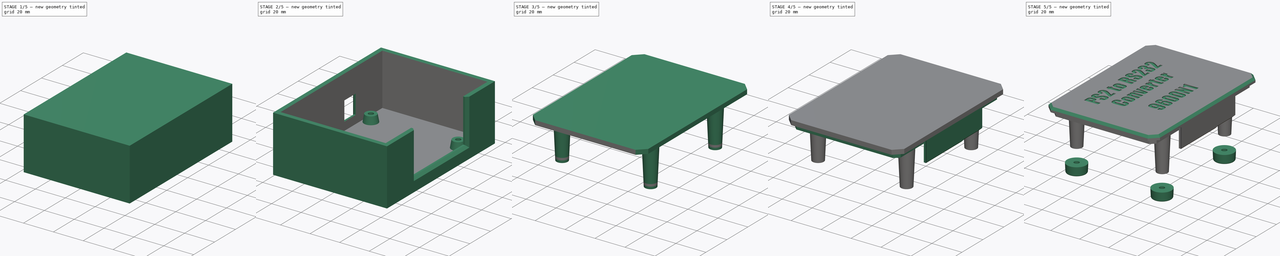
[diagram: build sequence overview — one tinted view per stage of 5, left to right]
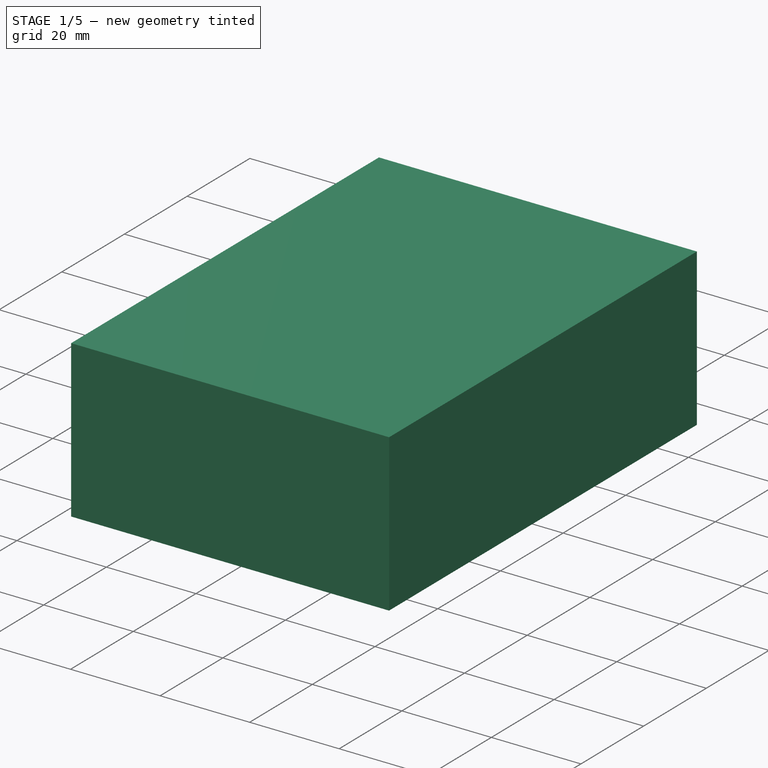
[diagram: stage 1 of 5 — iso view after this stage's code; geometry added in this stage tinted green]
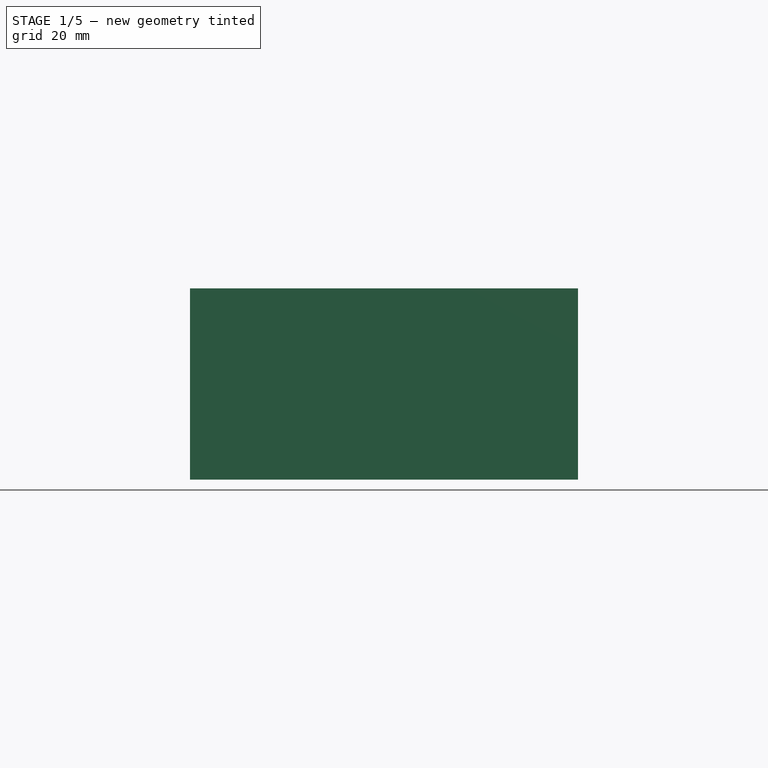
[diagram: stage 1 of 5 — front view after this stage's code; geometry added in this stage tinted green]
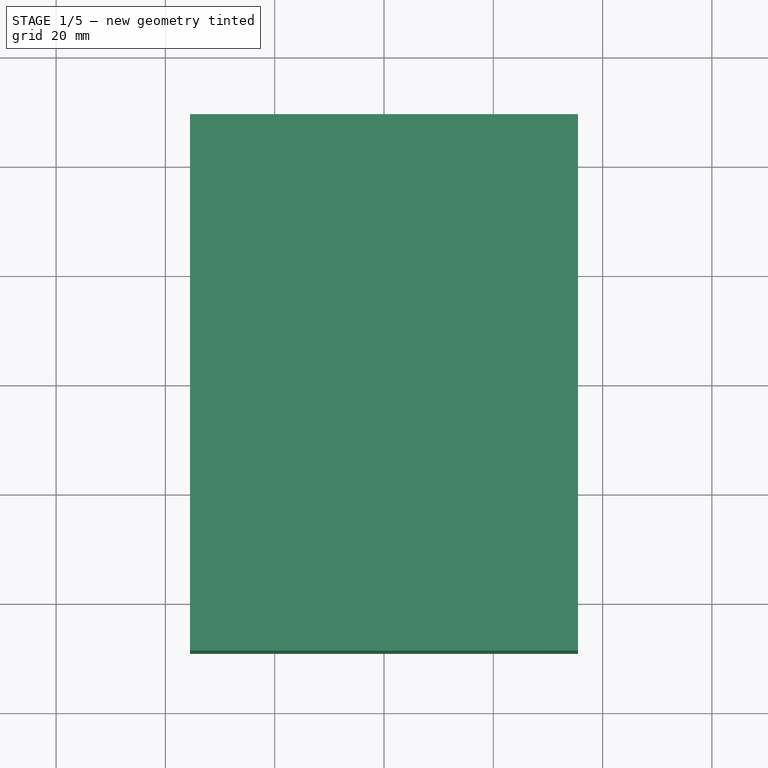
[diagram: stage 1 of 5 — top view after this stage's code; geometry added in this stage tinted green]
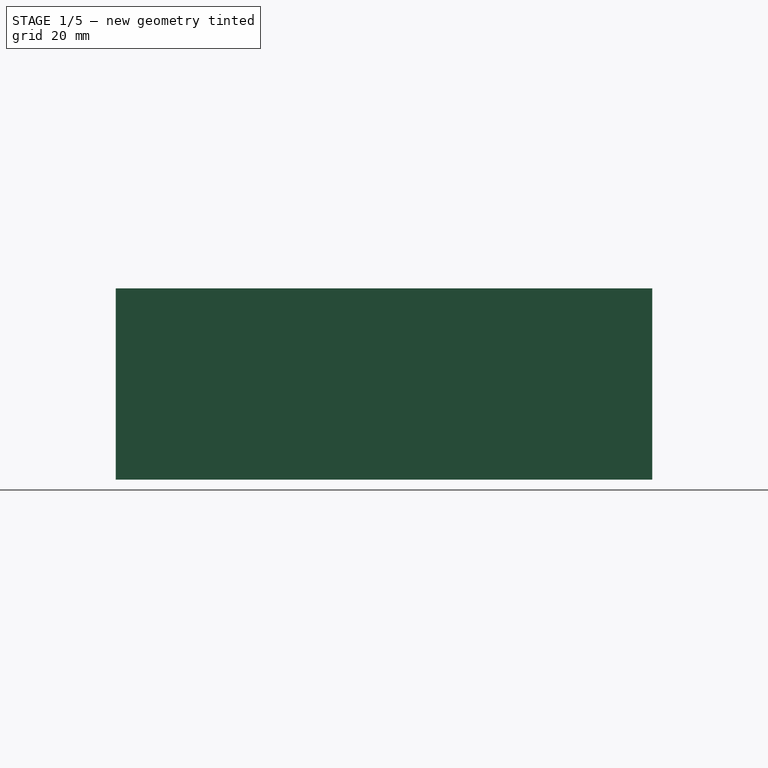
[diagram: stage 1 of 5 — right view after this stage's code; geometry added in this stage tinted green]
FCSTD DOCUMENT  (FreeCAD 0.20R29603 (Git))
Label: Adapter
License: All rights reserved
LicenseURL: http://en.wikipedia.org/wiki/All_rights_reserved
objects: Sketcher::SketchObject×21, PartDesign::Pad×11, PartDesign::Pocket×9, PartDesign::Chamfer×8, PartDesign::Body×4, PartDesign::ShapeBinder×4, Part::Part2DObjectPython×3, PartDesign::Draft×2, PartDesign::Thickness×1, PartDesign::Revolution×1, PartDesign::Fillet×1, Part::FeaturePython×1
note: 99 computed .brp shape members not serialized (recipe doc carries the construction recipe); baked Part::Feature solids carry a one-line shape summary decoded from their .brp

FEATURE [Sketcher::SketchObject] Sketch  label="PS2 interface PCB Blank spec"
  FullyConstrained = true
  MapMode = 5
  Support = -> [XY_Plane]
  sketch-geometry (8):
    g0: LineSegment StartX=-34.76 StartY=35.395 StartZ=0 EndX=34.76 EndY=35.395 EndZ=0
    g1: LineSegment StartX=34.76 StartY=35.395 StartZ=0 EndX=34.76 EndY=-35.395 EndZ=0
    g2: LineSegment StartX=34.76 StartY=-35.395 StartZ=0 EndX=-34.76 EndY=-35.395 EndZ=0
    g3: LineSegment StartX=-34.76 StartY=-35.395 StartZ=0 EndX=-34.76 EndY=35.395 EndZ=0
    g4: Circle CenterX=-30.315 CenterY=30.645 CenterZ=0 NormalX=0 NormalY=0 NormalZ=1 AngleXU=0 Radius=1.65
    g5: Circle CenterX=28.74 CenterY=30.645 CenterZ=0 NormalX=0 NormalY=0 NormalZ=1 AngleXU=0 Radius=1.65
    g6: Circle CenterX=-30.315 CenterY=-30.95 CenterZ=0 NormalX=0 NormalY=0 NormalZ=1 AngleXU=0 Radius=1.65
    g7: Circle CenterX=28.74 CenterY=-30.95 CenterZ=0 NormalX=0 NormalY=0 NormalZ=1 AngleXU=0 Radius=1.65
  constraints (23):
    c: Coincident(g0,g1)
    c: Coincident(g1,g2)
    c: Coincident(g2,g3)
    c: Coincident(g3,g0)
    c: Horizontal(g0)
    c: Horizontal(g2)
    c: Vertical(g1)
    c: Vertical(g3)
    c: Symmetric(g1,g0,g-1)
    c: Distance(g0) = 69.52
    c: Distance(g3) = 70.79
    c: Equal(g6,g7)
    c: Equal(g6,g5)
    c: Equal(g6,g4)
    c: Radius(g6) = 1.65
    c: DistanceX(g0,g4) = 4.445
    c: DistanceX(g2,g6) = 4.445
    c: DistanceX(g2,g7) = 63.5
    c: DistanceX(g0,g5) = 63.5
    c: DistanceY(g2,g4) = 66.04
    c: DistanceY(g1,g5) = 66.04
    c: DistanceY(g2,g6) = 4.445
    c: DistanceY(g1,g7) = 4.445
FEATURE [PartDesign::Pad] Pad  label="Make blank PCB"
  Direction = (0,0,1)
  Length = 1.6
  Length2 = 10
  Profile = -> Sketch
  ReferenceAxis = -> Sketch [N_Axis]
  Type = 0
FEATURE [Sketcher::SketchObject] Sketch001  label="D conn block model spec"
  ExternalGeometry = -> [Pad]
  FullyConstrained = true
  MapMode = 5
  Placement = pos=(0,0,1.6) rot=(0,0,1;0rad)
  Support = -> [Pad]
  sketch-geometry (5):
    g0: LineSegment StartX=20.46 StartY=7.26 StartZ=0 EndX=38.46 EndY=7.26 EndZ=0
    g1: LineSegment StartX=38.46 StartY=7.26 StartZ=0 EndX=38.46 EndY=-23.44 EndZ=0
    g2: LineSegment StartX=38.46 StartY=-23.44 StartZ=0 EndX=20.46 EndY=-23.44 EndZ=0
    g3: LineSegment StartX=20.46 StartY=-23.44 StartZ=0 EndX=20.46 EndY=7.26 EndZ=0
    g4: LineSegment StartX=20.46 StartY=-8.09 StartZ=0 EndX=38.46 EndY=-8.09 EndZ=0
  constraints (15):
    c: Coincident(g0,g1)
    c: Coincident(g1,g2)
    c: Coincident(g2,g3)
    c: Coincident(g3,g0)
    c: Horizontal(g0)
    c: Horizontal(g2)
    c: Vertical(g1)
    c: Vertical(g3)
    c: Distance(g1) = 30.7
    c: Distance(g0) = 18
    c: PointOnObject(g4,g3)
    c: PointOnObject(g4,g1)
    c: Symmetric(g2,g0,g4)
    c: DistanceY(g-3,g4) = 27.305
    c: DistanceX(g2,g-3) = 14.3
FEATURE [PartDesign::Pad] Pad001  label="D conn block model (no details)"
  BaseFeature = -> Pad
  Direction = (0,0,1)
  Length = 12.75
  Length2 = 10
  Profile = -> Sketch001
  ReferenceAxis = -> Sketch001 [N_Axis]
  Type = 0
FEATURE [Sketcher::SketchObject] Sketch002  label="PS2 Socket block model spec"
  ExternalGeometry = -> [Pad001]
  FullyConstrained = true
  MapMode = 5
  Placement = pos=(0,0,1.6) rot=(0,0,1;0rad)
  Support = -> [Pad001]
  sketch-geometry (5):
    g0: LineSegment StartX=22.26 StartY=24.6775 StartZ=0 EndX=35.36 EndY=24.6775 EndZ=0
    g1: LineSegment StartX=35.36 StartY=24.6775 StartZ=0 EndX=35.36 EndY=10.5775 EndZ=0
    g2: LineSegment StartX=35.36 StartY=10.5775 StartZ=0 EndX=22.26 EndY=10.5775 EndZ=0
    g3: LineSegment StartX=22.26 StartY=10.5775 StartZ=0 EndX=22.26 EndY=24.6775 EndZ=0
    g4: LineSegment StartX=35.36 StartY=17.6275 StartZ=0 EndX=22.26 EndY=17.6275 EndZ=0
  constraints (15):
    c: Coincident(g0,g1)
    c: Coincident(g1,g2)
    c: Coincident(g2,g3)
    c: Coincident(g3,g0)
    c: Horizontal(g0)
    c: Horizontal(g2)
    c: Vertical(g1)
    c: Vertical(g3)
    c: PointOnObject(g4,g3)
    c: PointOnObject(g4,g1)
    c: Symmetric(g2,g0,g4)
    c: DistanceY(g-3,g4) = 53.0225
    c: DistanceX(g4,g-3) = 12.5
    c: Distance(g1) = 14.1
    c: Distance(g0) = 13.1
FEATURE [PartDesign::Pad] Pad002  label="Make PS2 Socket block (no details)"
  BaseFeature = -> Pad001
  Direction = (0,0,1)
  Length = 13.2
  Length2 = 10
  Profile = -> Sketch002
  ReferenceAxis = -> Sketch002 [N_Axis]
  Type = 0
FEATURE [Sketcher::SketchObject] Sketch003  label="Power jack socket block spec"
  ExternalGeometry = -> [Pad002]
  FullyConstrained = true
  MapMode = 5
  Placement = pos=(0,0,1.6) rot=(0,0,1;0rad)
  Support = -> [Pad002]
  sketch-geometry (5):
    g0: LineSegment StartX=-36.64 StartY=22.445 StartZ=0 EndX=-22.64 EndY=22.445 EndZ=0
    g1: LineSegment StartX=-22.64 StartY=22.445 StartZ=0 EndX=-22.64 EndY=13.445 EndZ=0
    g2: LineSegment StartX=-22.64 StartY=13.445 StartZ=0 EndX=-36.64 EndY=13.445 EndZ=0
    g3: LineSegment StartX=-36.64 StartY=13.445 StartZ=0 EndX=-36.64 EndY=22.445 EndZ=0
    g4: LineSegment StartX=-22.64 StartY=17.945 StartZ=0 EndX=-36.64 EndY=17.945 EndZ=0
  constraints (15):
    c: Coincident(g0,g1)
    c: Coincident(g1,g2)
    c: Coincident(g2,g3)
    c: Coincident(g3,g0)
    c: Horizontal(g0)
    c: Horizontal(g2)
    c: Vertical(g1)
    c: Vertical(g3)
    c: Distance(g0) = 14
    c: Distance(g3) = 9
    c: PointOnObject(g4,g3)
    c: PointOnObject(g4,g1)
    c: Symmetric(g2,g0,g4)
    c: DistanceY(g-3,g4) = 53.34
    c: DistanceX(g2,g-3) = 1.88
FEATURE [PartDesign::Pad] Pad003  label="Make power jack socket block (no details)"
  BaseFeature = -> Pad002
  Direction = (0,0,1)
  Length = 11
  Length2 = 10
  Profile = -> Sketch003
  ReferenceAxis = -> Sketch003 [N_Axis]
  Type = 0
FEATURE [Sketcher::SketchObject] Sketch004  label="Heatsink block spec (no details)"
  ExternalGeometry = -> [Pad003]
  FullyConstrained = true
  MapMode = 5
  Placement = pos=(0,0,1.6) rot=(0,0,1;0rad)
  Support = -> [Pad003]
  sketch-geometry (6):
    g0: LineSegment StartX=-16.125 StartY=47.095 StartZ=0 EndX=11.375 EndY=47.095 EndZ=0
    g1: LineSegment StartX=11.375 StartY=47.095 StartZ=0 EndX=11.375 EndY=9.095 EndZ=0
    g2: LineSegment StartX=11.375 StartY=9.095 StartZ=0 EndX=-16.125 EndY=9.095 EndZ=0
    g3: LineSegment StartX=-16.125 StartY=9.095 StartZ=0 EndX=-16.125 EndY=47.095 EndZ=0
    g4: LineSegment StartX=-2.375 StartY=47.095 StartZ=0 EndX=-2.375 EndY=9.095 EndZ=0
    g5: GeomPoint X=-2.375 Y=11.635 Z=0
  constraints (18):
    c: Coincident(g0,g1)
    c: Coincident(g1,g2)
    c: Coincident(g2,g3)
    c: Coincident(g3,g0)
    c: Horizontal(g0)
    c: Horizontal(g2)
    c: Vertical(g1)
    c: Vertical(g3)
    c: PointOnObject(g4,g0)
    c: PointOnObject(g4,g2)
    c: Symmetric(g0,g0,g4)
    c: PointOnObject(g5,g4)
    c: Distance(g0) = 27.5
    c: Distance(g3) = 38
    c: DistanceY(g2,g5) = 2.54
    c: DistanceX(g-3,g5) = 32.385
    c: DistanceY(g-3,g5) = 47.03
    c: DistanceY(g-4,g0) = 11.7
FEATURE [PartDesign::Pad] Pad004  label="Add heatsink block"
  BaseFeature = -> Pad003
  Direction = (0,0,1)
  Length = 22.55
  Length2 = 10
  Profile = -> Sketch004
  ReferenceAxis = -> Sketch004 [N_Axis]
  Type = 0
FEATURE [Sketcher::SketchObject] Sketch005  label="Heatsink chip void cutout spec"
  ExternalGeometry = -> [Pad004]
  FullyConstrained = false
  MapMode = 5
  Placement = pos=(0,47.095,0) rot=(0,0.707107,0.707107;3.14159rad)
  Support = -> [Pad004]
  sketch-geometry (5):
    g0: LineSegment StartX=-9.375 StartY=26.8221 StartZ=0 EndX=14.125 EndY=26.8221 EndZ=0
    g1: LineSegment StartX=14.125 StartY=26.8221 StartZ=0 EndX=14.125 EndY=3.6 EndZ=0
    g2: LineSegment StartX=14.125 StartY=3.6 StartZ=0 EndX=-9.375 EndY=3.6 EndZ=0
    g3: LineSegment StartX=-9.375 StartY=3.6 StartZ=0 EndX=-9.375 EndY=26.8221 EndZ=0
    g4: LineSegment StartX=2.375 StartY=26.8221 StartZ=0 EndX=2.375 EndY=24.15 EndZ=0
  constraints (13):
    c: Coincident(g0,g1)
    c: Coincident(g1,g2)
    c: Coincident(g2,g3)
    c: Coincident(g3,g0)
    c: Horizontal(g2)
    c: Vertical(g1)
    c: Vertical(g3)
    c: PointOnObject(g4,g0)
    c: PointOnObject(g4,g-4)
    c: Symmetric(g0,g0,g4)
    c: Symmetric(g-4,g-4,g4)
    c: DistanceX(g-4,g0) = 2
    c: DistanceY(g-3,g1) = 2
FEATURE [PartDesign::Pocket] Pocket  label="Add heatsink chip void cut"
  BaseFeature = -> Pad004
  Direction = (0,-1,2e-16)
  Length = 5
  Length2 = 5
  Profile = -> Sketch005
  ReferenceAxis = -> Sketch005 [N_Axis]
  Type = 2
FEATURE [PartDesign::Body] Body  label="PCB "
  Group = -> [Sketch,Pad,Sketch001,Pad001,Sketch002,Pad002,Sketch003,Pad003,Sketch004,Pad004,Sketch005,Pocket]
  Origin = -> Origin
  Tip = -> Pocket
FEATURE [PartDesign::ShapeBinder] ShapeBinder
  Support = -> [Body]
  TraceSupport = false
FEATURE [Sketcher::SketchObject] Sketch006  label="Box shell outline"
  ExternalGeometry = -> [ShapeBinder]
  FullyConstrained = true
  MapMode = 5
  Support = -> [XY_Plane001]
  sketch-geometry (4):
    g0: LineSegment StartX=-35.51 StartY=49.095 StartZ=0 EndX=35.51 EndY=49.095 EndZ=0
    g1: LineSegment StartX=35.51 StartY=49.095 StartZ=0 EndX=35.51 EndY=-49.095 EndZ=0
    g2: LineSegment StartX=35.51 StartY=-49.095 StartZ=0 EndX=-35.51 EndY=-49.095 EndZ=0
    g3: LineSegment StartX=-35.51 StartY=-49.095 StartZ=0 EndX=-35.51 EndY=49.095 EndZ=0
  constraints (11):
    c: Coincident(g0,g1)
    c: Coincident(g1,g2)
    c: Coincident(g2,g3)
    c: Coincident(g3,g0)
    c: Horizontal(g0)
    c: Horizontal(g2)
    c: Vertical(g1)
    c: DistanceY(g-3,g0) = 2
    c: DistanceX(g0,g-4) = 0.75
    c: DistanceX(g-5,g0) = 0.75
    c: Symmetric(g0,g2,g-1)
FEATURE [PartDesign::Pad] Pad005  label="Make box shell block"
  Direction = (0,0,1)
  Length = 35
  Length2 = 10
  Profile = -> Sketch006
  ReferenceAxis = -> Sketch006 [N_Axis]
  Type = 0
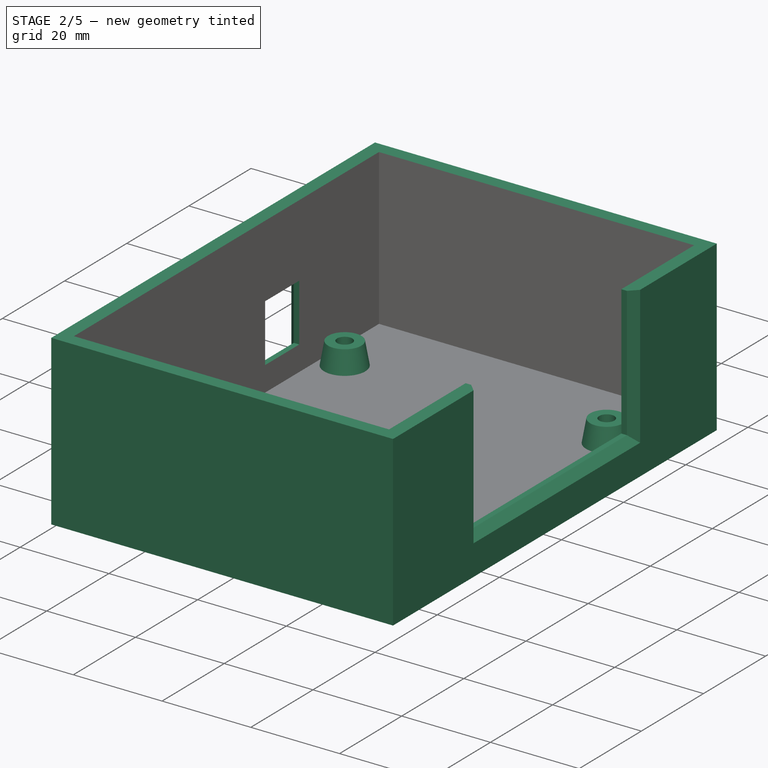
[diagram: stage 2 of 5 — iso view after this stage's code; geometry added in this stage tinted green]
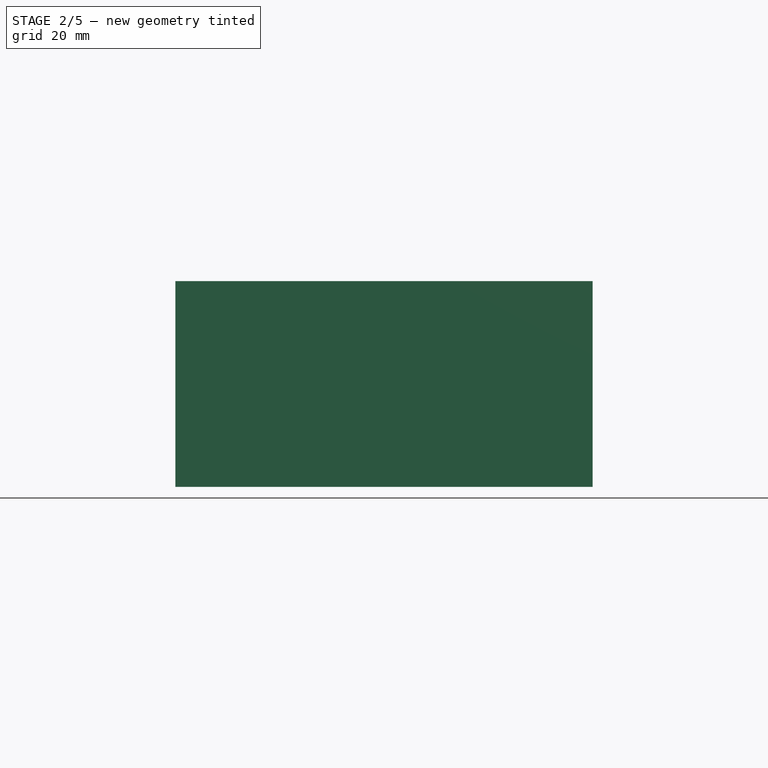
[diagram: stage 2 of 5 — front view after this stage's code; geometry added in this stage tinted green]
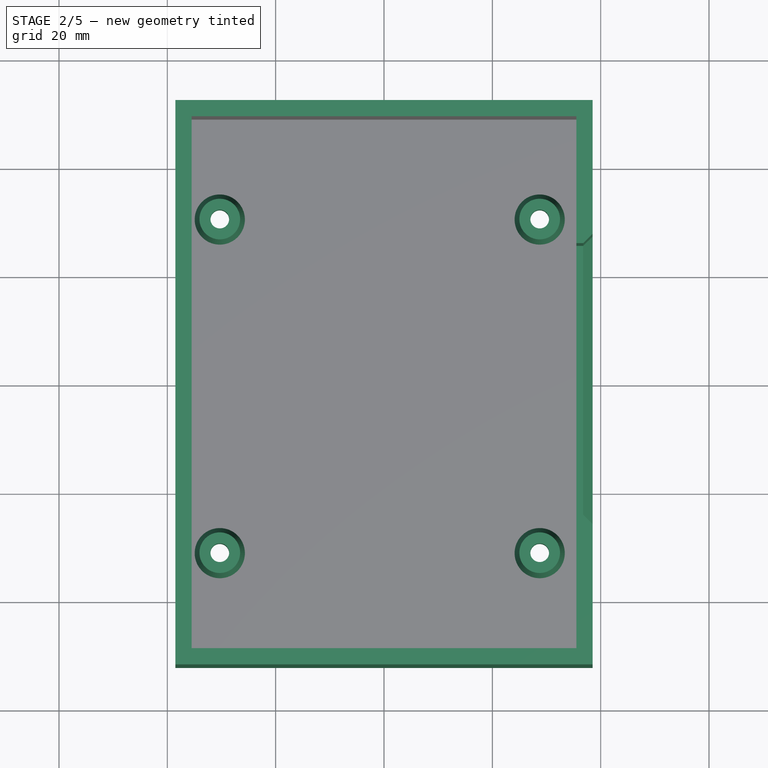
[diagram: stage 2 of 5 — top view after this stage's code; geometry added in this stage tinted green]
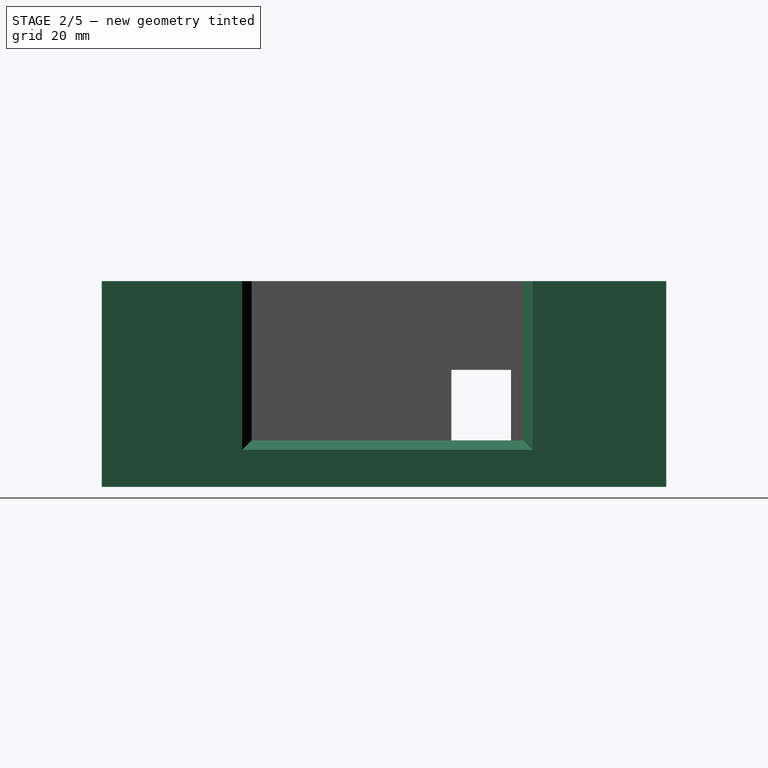
[diagram: stage 2 of 5 — right view after this stage's code; geometry added in this stage tinted green]
FEATURE [PartDesign::Thickness] Thickness  label="Make block into a shell"
  Base = -> Pad005 [Face6]
  BaseFeature = -> Pad005
  Intersection = false
  Join = 1
  Mode = 0
  SupportTransform = false
  Value = 3
FEATURE [Sketcher::SketchObject] Sketch007  label="Mounting and closing pillar spec"
  ExternalGeometry = -> [ShapeBinder]
  FullyConstrained = true
  MapMode = 5
  Support = -> [Thickness]
  sketch-geometry (4):
    g0: Circle CenterX=-30.315 CenterY=30.645 CenterZ=0 NormalX=0 NormalY=0 NormalZ=1 AngleXU=0 Radius=3.75
    g1: Circle CenterX=28.74 CenterY=30.645 CenterZ=0 NormalX=0 NormalY=0 NormalZ=1 AngleXU=0 Radius=3.75
    g2: Circle CenterX=-30.315 CenterY=-30.95 CenterZ=0 NormalX=0 NormalY=0 NormalZ=1 AngleXU=0 Radius=3.75
    g3: Circle CenterX=28.74 CenterY=-30.95 CenterZ=0 NormalX=0 NormalY=0 NormalZ=1 AngleXU=0 Radius=3.75
  constraints (8):
    c: Coincident(g2,g-5)
    c: Coincident(g3,g-6)
    c: Coincident(g0,g-3)
    c: Coincident(g1,g-4)
    c: Equal(g0,g1)
    c: Equal(g0,g3)
    c: Equal(g0,g2)
    c: Diameter(g0) = 7.5
FEATURE [PartDesign::Pad] Pad006  label="Add mounting and closing pillars"
  BaseFeature = -> Thickness
  Direction = (0,0,1)
  Length = 5
  Length2 = 10
  Profile = -> Sketch007
  ReferenceAxis = -> Sketch007 [N_Axis]
  Type = 0
FEATURE [Sketcher::SketchObject] Sketch008  label="Front sockets cutout spec"
  ExternalGeometry = -> [ShapeBinder,Pad006]
  FullyConstrained = true
  MapMode = 5
  Placement = pos=(38.51,0,0) rot=(0.57735,0.57735,0.57735;2.0944rad)
  Support = -> [Pad006]
  sketch-geometry (4):
    g0: LineSegment StartX=-24.44 StartY=35 StartZ=0 EndX=25.6775 EndY=35 EndZ=0
    g1: LineSegment StartX=25.6775 StartY=35 StartZ=0 EndX=25.6775 EndY=5.6 EndZ=0
    g2: LineSegment StartX=25.6775 StartY=5.6 StartZ=0 EndX=-24.44 EndY=5.6 EndZ=0
    g3: LineSegment StartX=-24.44 StartY=5.6 StartZ=0 EndX=-24.44 EndY=35 EndZ=0
  constraints (12):
    c: Coincident(g0,g1)
    c: Coincident(g1,g2)
    c: Coincident(g2,g3)
    c: Coincident(g3,g0)
    c: Horizontal(g0)
    c: Horizontal(g2)
    c: Vertical(g1)
    c: Vertical(g3)
    c: DistanceX(g0,g-5) = 1
    c: DistanceY(g-4,g1) = 4
    c: PointOnObject(g0,g-6)
    c: DistanceX(g-7,g1) = 1
FEATURE [PartDesign::Pocket] Pocket001  label="Add front sockets cutout"
  BaseFeature = -> Pad006
  Direction = (-1,0,0)
  Length = 5
  Length2 = 5
  Profile = -> Sketch008
  ReferenceAxis = -> Sketch008 [N_Axis]
  Type = 2
FEATURE [Sketcher::SketchObject] Sketch009  label="Power jack cutout spec"
  ExternalGeometry = -> [ShapeBinder]
  FullyConstrained = true
  MapMode = 5
  Placement = pos=(-38.51,0,0) rot=(0.57735,-0.57735,-0.57735;2.0944rad)
  Support = -> [Pocket001]
  sketch-geometry (4):
    g0: LineSegment StartX=-23.445 StartY=18.6 StartZ=0 EndX=-12.445 EndY=18.6 EndZ=0
    g1: LineSegment StartX=-12.445 StartY=18.6 StartZ=0 EndX=-12.445 EndY=5.6 EndZ=0
    g2: LineSegment StartX=-12.445 StartY=5.6 StartZ=0 EndX=-23.445 EndY=5.6 EndZ=0
    g3: LineSegment StartX=-23.445 StartY=5.6 StartZ=0 EndX=-23.445 EndY=18.6 EndZ=0
  constraints (12):
    c: Coincident(g0,g1)
    c: Coincident(g1,g2)
    c: Coincident(g2,g3)
    c: Coincident(g3,g0)
    c: Horizontal(g0)
    c: Horizontal(g2)
    c: Vertical(g1)
    c: Vertical(g3)
    c: DistanceY(g-4,g0) = 6
    c: DistanceX(g0,g-4) = 1
    c: DistanceX(g-3,g0) = 1
    c: DistanceY(g-7,g1) = 4
FEATURE [PartDesign::Pocket] Pocket002  label="Add power jack cutout"
  BaseFeature = -> Pocket001
  Direction = (1,0,0)
  Length = 5
  Length2 = 5
  Profile = -> Sketch009
  ReferenceAxis = -> Sketch009 [N_Axis]
  Type = 2
FEATURE [Sketcher::SketchObject] Sketch010  label="Pillar screwhole spec"
  ExternalGeometry = -> [Pocket002]
  FullyConstrained = true
  MapMode = 5
  Placement = pos=(0,0,-3) rot=(1,0,0;3.14159rad)
  Support = -> [Pocket002]
  sketch-geometry (4):
    g0: Circle CenterX=-30.315 CenterY=30.95 CenterZ=0 NormalX=0 NormalY=0 NormalZ=1 AngleXU=0 Radius=1.725
    g1: Circle CenterX=28.74 CenterY=30.95 CenterZ=0 NormalX=0 NormalY=0 NormalZ=1 AngleXU=0 Radius=1.725
    g2: Circle CenterX=-30.315 CenterY=-30.645 CenterZ=0 NormalX=0 NormalY=0 NormalZ=1 AngleXU=0 Radius=1.725
    g3: Circle CenterX=28.74 CenterY=-30.645 CenterZ=0 NormalX=0 NormalY=0 NormalZ=1 AngleXU=0 Radius=1.725
  constraints (8):
    c: Coincident(g0,g-6)
    c: Coincident(g1,g-5)
    c: Coincident(g2,g-3)
    c: Coincident(g3,g-4)
    c: Equal(g0,g1)
    c: Equal(g0,g2)
    c: Equal(g0,g3)
    c: Diameter(g0) = 3.45
FEATURE [PartDesign::Pocket] Pocket003  label="Add screwholes in pillars"
  BaseFeature = -> Pocket002
  Direction = (0,0,1)
  Length = 5
  Length2 = 5
  Profile = -> Sketch010
  ReferenceAxis = -> Sketch010 [N_Axis]
  Type = 1
FEATURE [PartDesign::Draft] Draft  label="Beef up mounting pillar base by drafting at 10d"
  Angle = 10
  Base = -> Pocket003 [Face14,Face16,Face17,Face15]
  BaseFeature = -> Pocket003
  NeutralPlane = -> Pocket003 [Face22]
  SupportTransform = false
FEATURE [PartDesign::Chamfer] Chamfer  label="Make entry holes pretty"
  Angle = 45
  Base = -> Draft [Edge42,Edge44,Edge40,Edge33,Edge39,Edge37,Edge36]
  BaseFeature = -> Draft
  ChamferType = 0
  FlipDirection = false
  Size = 1.75
  Size2 = 1
  SupportTransform = false
  UseAllEdges = false
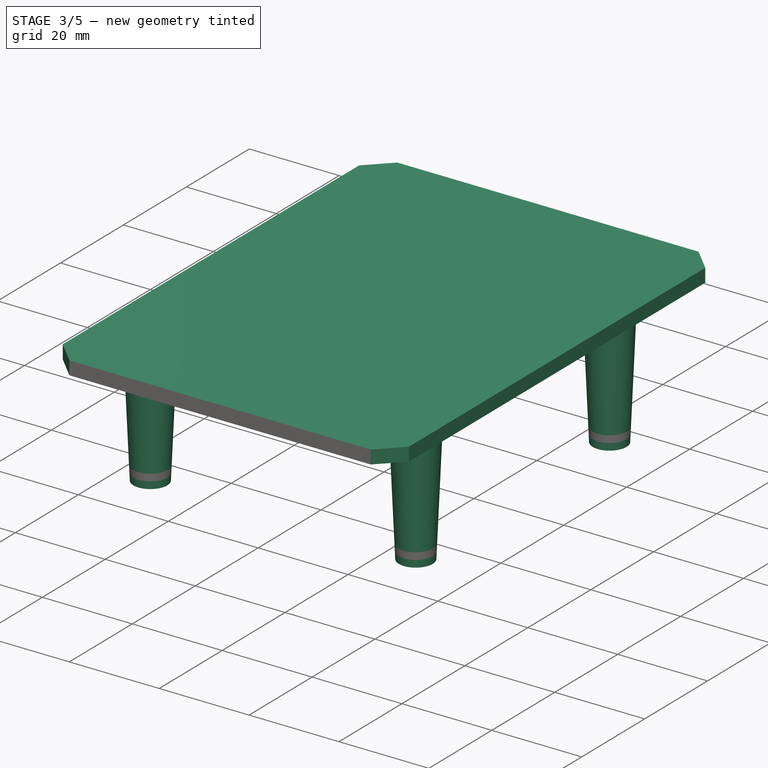
[diagram: stage 3 of 5 — iso view after this stage's code; geometry added in this stage tinted green]
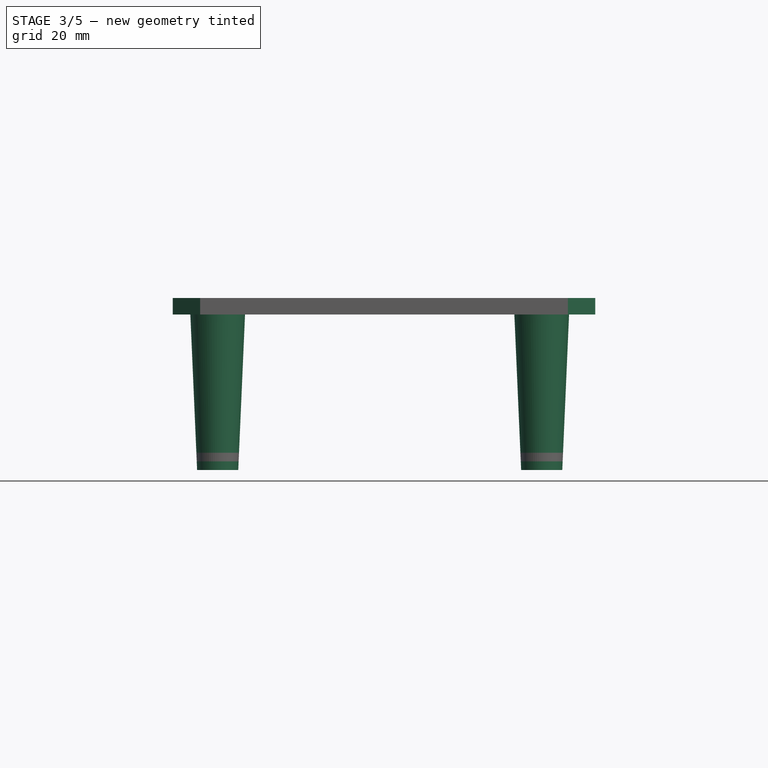
[diagram: stage 3 of 5 — front view after this stage's code; geometry added in this stage tinted green]
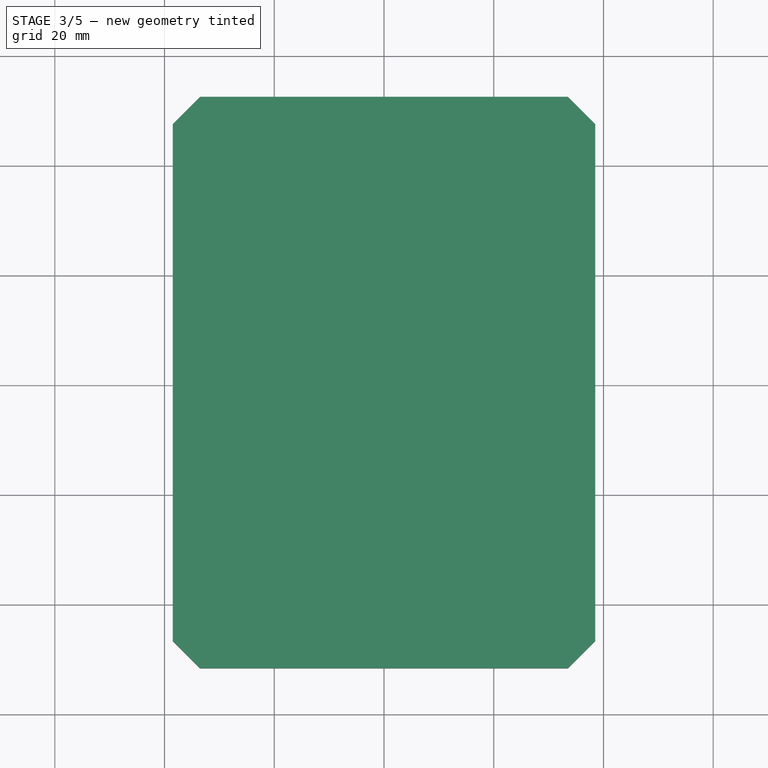
[diagram: stage 3 of 5 — top view after this stage's code; geometry added in this stage tinted green]
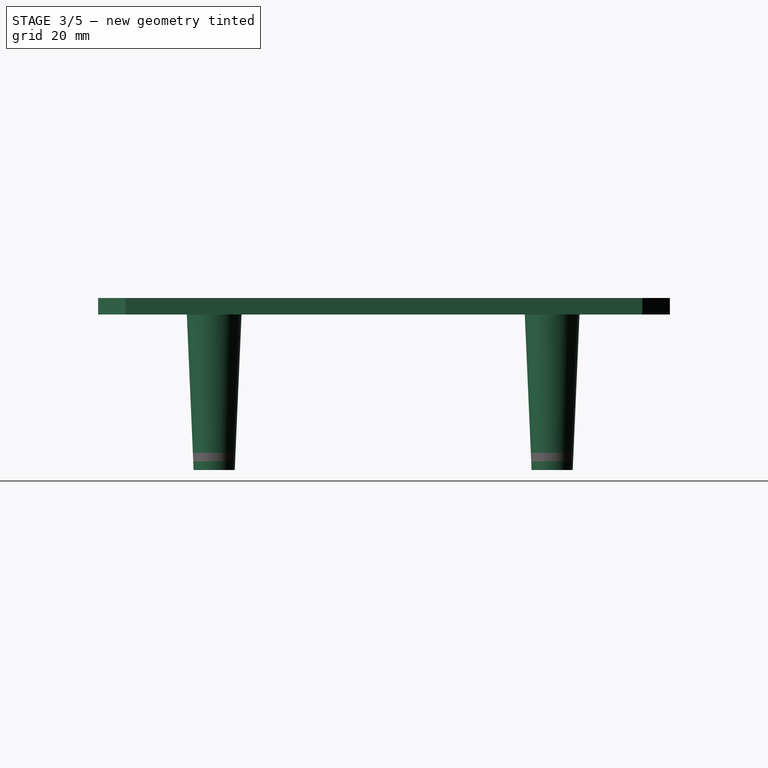
[diagram: stage 3 of 5 — right view after this stage's code; geometry added in this stage tinted green]
FEATURE [PartDesign::Chamfer] Chamfer001  label="Inside corner reinforcement chamfer"
  Angle = 45
  Base = -> Chamfer [Edge30,Edge35,Edge22,Edge21]
  BaseFeature = -> Chamfer
  ChamferType = 0
  FlipDirection = false
  Size = 3
  Size2 = 1
  SupportTransform = false
  UseAllEdges = false
FEATURE [PartDesign::Chamfer] Chamfer002  label="Outside decorative chamfer to match with inside chamfer"
  Angle = 45
  Base = -> Chamfer001 [Edge46,Edge55,Edge35,Edge39]
  BaseFeature = -> Chamfer001
  ChamferType = 0
  FlipDirection = false
  Size = 5
  Size2 = 1
  SupportTransform = false
  UseAllEdges = false
FEATURE [PartDesign::Chamfer] Chamfer003  label="Vanity and lid easing chamfer"
  Angle = 45
  Base = -> Chamfer002 [Face1]
  BaseFeature = -> Chamfer002
  ChamferType = 0
  FlipDirection = false
  Size = 0.5
  Size2 = 1
  SupportTransform = false
  UseAllEdges = false
FEATURE [PartDesign::Body] Body001  label="Case base"
  Group = -> [ShapeBinder,Sketch006,Pad005,Thickness,Sketch007,Pad006,Sketch008,Pocket001,Sketch009,Pocket002,Sketch010,Pocket003,Draft,Chamfer,Chamfer001,Chamfer002,Chamfer003]
  Origin = -> Origin001
  Placement = pos=(0,0,-5) rot=(0,0,1;0rad)
  Tip = -> Chamfer003
FEATURE [PartDesign::ShapeBinder] ShapeBinder001  label="Base shapebinder"
  Placement = pos=(0,0,-5) rot=(0,0,1;0rad)
  Support = -> [Body001]
  TraceSupport = false
FEATURE [Sketcher::SketchObject] Sketch011  label="Lid spec"
  ExternalGeometry = -> [ShapeBinder001]
  FullyConstrained = true
  MapMode = 5
  Placement = pos=(0,0,30) rot=(0,0,1;0rad)
  Support = -> [ShapeBinder001]
  sketch-geometry (8):
    g0: LineSegment StartX=33.51 StartY=52.095 StartZ=0 EndX=-33.51 EndY=52.095 EndZ=0
    g1: LineSegment StartX=-33.51 StartY=52.095 StartZ=0 EndX=-38.51 EndY=47.095 EndZ=0
    g2: LineSegment StartX=-38.51 StartY=47.095 StartZ=0 EndX=-38.51 EndY=-47.095 EndZ=0
    g3: LineSegment StartX=-38.51 StartY=-47.095 StartZ=0 EndX=-33.51 EndY=-52.095 EndZ=0
    g4: LineSegment StartX=-33.51 StartY=-52.095 StartZ=0 EndX=33.51 EndY=-52.095 EndZ=0
    g5: LineSegment StartX=33.51 StartY=-52.095 StartZ=0 EndX=38.51 EndY=-47.095 EndZ=0
    g6: LineSegment StartX=38.51 StartY=-47.095 StartZ=0 EndX=38.51 EndY=47.095 EndZ=0
    g7: LineSegment StartX=38.51 StartY=47.095 StartZ=0 EndX=33.51 EndY=52.095 EndZ=0
  constraints (16):
    c: Coincident(g0,g1)
    c: Coincident(g1,g2)
    c: Coincident(g2,g3)
    c: Coincident(g3,g4)
    c: Coincident(g4,g5)
    c: Coincident(g5,g6)
    c: Coincident(g6,g7)
    c: Coincident(g0,g7)
    c: Coincident(g-10,g5)
    c: Coincident(g-9,g4)
    c: Coincident(g3,g-8)
    c: Coincident(g-7,g2)
    c: Coincident(g-4,g1)
    c: Coincident(g-3,g0)
    c: Coincident(g-5,g6)
    c: Coincident(g-6,g0)
FEATURE [PartDesign::Pad] Pad007  label="Make lid from base spec"
  Direction = (0,0,1)
  Length = 3
  Length2 = 10
  Placement = pos=(0,0,-5) rot=(0,0,1;0rad)
  Profile = -> Sketch011
  ReferenceAxis = -> Sketch011 [N_Axis]
  Type = 0
FEATURE [Sketcher::SketchObject] Sketch012  label="Lid mounting pillar spec"
  ExternalGeometry = -> [ShapeBinder001]
  FullyConstrained = true
  MapMode = 5
  Placement = pos=(0,0,30) rot=(1,0,0;3.14159rad)
  Support = -> [Pad007]
  sketch-geometry (4):
    g0: Circle CenterX=-30.315 CenterY=-30.645 CenterZ=0 NormalX=0 NormalY=0 NormalZ=1 AngleXU=0 Radius=3.75
    g1: Circle CenterX=28.74 CenterY=-30.645 CenterZ=0 NormalX=0 NormalY=0 NormalZ=1 AngleXU=0 Radius=3.75
    g2: Circle CenterX=-30.315 CenterY=30.95 CenterZ=0 NormalX=0 NormalY=0 NormalZ=1 AngleXU=0 Radius=3.75
    g3: Circle CenterX=28.74 CenterY=30.95 CenterZ=0 NormalX=0 NormalY=0 NormalZ=1 AngleXU=0 Radius=3.75
  constraints (8):
    c: Coincident(g2,g-4)
    c: Coincident(g3,g-3)
    c: Coincident(g1,g-6)
    c: Coincident(g0,g-5)
    c: Equal(g0,g1)
    c: Equal(g0,g3)
    c: Equal(g0,g2)
    c: Diameter(g0) = 7.5
FEATURE [PartDesign::Pad] Pad008  label="Make lid mounting pillars"
  BaseFeature = -> Pad007
  Direction = (0,0,-1)
  Length = 28.35
  Length2 = 10
  Placement = pos=(0,0,-5) rot=(0,0,1;0rad)
  Profile = -> Sketch012
  ReferenceAxis = -> Sketch012 [N_Axis]
  Type = 0
FEATURE [PartDesign::Draft] Draft001  label="Beef up lid mounting pillars"
  Angle = 2.5
  Base = -> Pad008 [Face13,Face11,Face12,Face14]
  BaseFeature = -> Pad008
  NeutralPlane = -> Pad008 [Face18]
  Placement = pos=(0,0,-5) rot=(0,0,1;0rad)
  Reversed = true
  SupportTransform = false
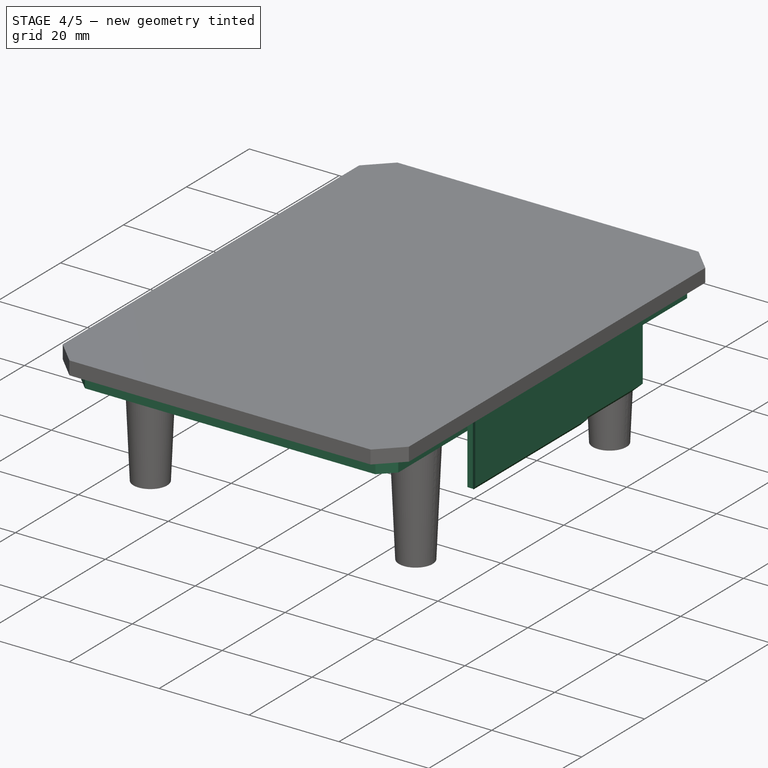
[diagram: stage 4 of 5 — iso view after this stage's code; geometry added in this stage tinted green]
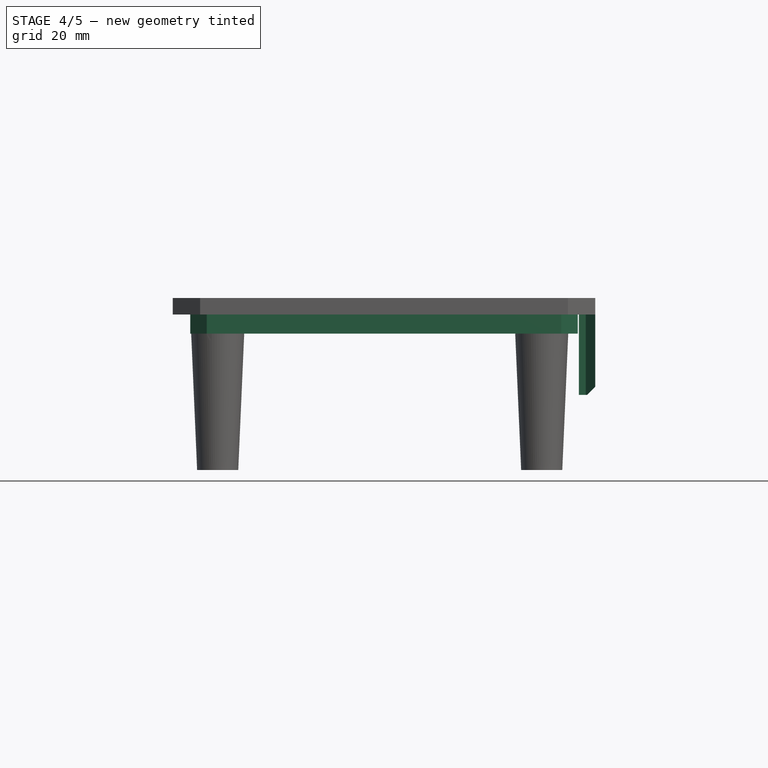
[diagram: stage 4 of 5 — front view after this stage's code; geometry added in this stage tinted green]
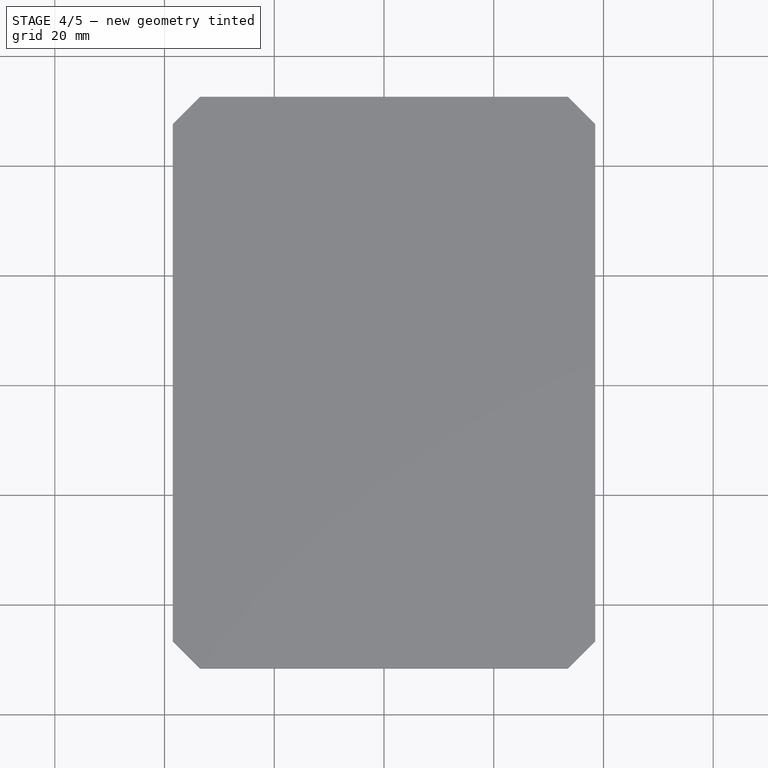
[diagram: stage 4 of 5 — top view after this stage's code; geometry added in this stage tinted green]
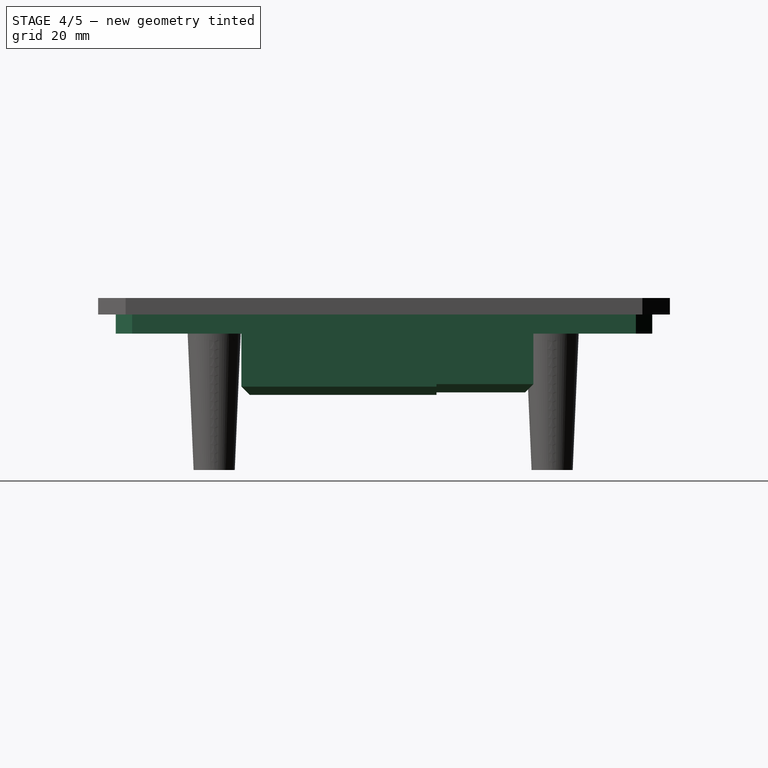
[diagram: stage 4 of 5 — right view after this stage's code; geometry added in this stage tinted green]
FEATURE [Sketcher::SketchObject] Sketch013  label="Inside lip spec for lid"
  ExternalGeometry = -> [ShapeBinder001]
  FullyConstrained = true
  MapMode = 5
  Placement = pos=(0,0,30) rot=(1,0,0;3.14159rad)
  Support = -> [Draft001]
  sketch-geometry (12):
    g0: LineSegment StartX=32.31 StartY=48.895 StartZ=0 EndX=-32.31 EndY=48.895 EndZ=0
    g1: LineSegment StartX=-32.31 StartY=48.895 StartZ=0 EndX=-35.31 EndY=45.895 EndZ=0
    g2: LineSegment StartX=-35.31 StartY=45.895 StartZ=0 EndX=-35.31 EndY=-45.895 EndZ=0
    g3: LineSegment StartX=-35.31 StartY=-45.895 StartZ=0 EndX=-32.31 EndY=-48.895 EndZ=0
    g4: LineSegment StartX=-32.31 StartY=-48.895 StartZ=0 EndX=32.31 EndY=-48.895 EndZ=0
    g5: LineSegment StartX=32.31 StartY=-48.895 StartZ=0 EndX=35.31 EndY=-45.895 EndZ=0
    g6: LineSegment StartX=35.31 StartY=-45.895 StartZ=0 EndX=35.31 EndY=45.895 EndZ=0
    g7: LineSegment StartX=35.31 StartY=45.895 StartZ=0 EndX=32.31 EndY=48.895 EndZ=0
    g8: LineSegment StartX=-32.31 StartY=45.895 StartZ=0 EndX=32.31 EndY=45.895 EndZ=0
    g9: LineSegment StartX=32.31 StartY=45.895 StartZ=0 EndX=32.31 EndY=-45.895 EndZ=0
    g10: LineSegment StartX=32.31 StartY=-45.895 StartZ=0 EndX=-32.31 EndY=-45.895 EndZ=0
    g11: LineSegment StartX=-32.31 StartY=-45.895 StartZ=0 EndX=-32.31 EndY=45.895 EndZ=0
  constraints (34):
    c: Coincident(g1,g2)
    c: Coincident(g3,g4)
    c: DistanceY(g-6,g3) = 0.2
    c: DistanceX(g-6,g3) = 0.2
    c: DistanceY(g-4,g2) = 0.2
    c: Coincident(g4,g5)
    c: DistanceX(g4,g-6) = 0.2
    c: Coincident(g6,g5)
    c: DistanceX(g5,g-5) = 0.2
    c: DistanceY(g-5,g5) = 0.2
    c: Coincident(g6,g7)
    c: DistanceY(g6,g-5) = 0.2
    c: DistanceX(g6,g-5) = 0.2
    c: Coincident(g0,g7)
    c: Coincident(g1,g0)
    c: DistanceX(g-4,g1) = 0.2
    c: DistanceY(g1,g-4) = 0.2
    c: DistanceY(g0,g-3) = 0.2
    c: DistanceX(g-3,g0) = 0.2
    c: DistanceX(g0,g-3) = 0.2
    c: DistanceY(g0,g-3) = 0.2
    c: DistanceY(g-6,g4) = 0.2
    c: Coincident(g2,g3)
    c: DistanceX(g-4,g2) = 0.2
    c: Coincident(g8,g9)
    c: Coincident(g9,g10)
    c: Coincident(g10,g11)
    c: Coincident(g11,g8)
    c: Horizontal(g10)
    c: Vertical(g9)
    c: Symmetric(g8,g8,g-2)
    c: Symmetric(g8,g10,g-1)
    c: DistanceY(g8,g0) = 3
    c: DistanceX(g1,g8) = 3
FEATURE [PartDesign::Pad] Pad009  label="Add inside lip to lid"
  BaseFeature = -> Draft001
  Direction = (0,0,-1)
  Length = 3.5
  Length2 = 10
  Placement = pos=(0,0,-5) rot=(0,0,1;0rad)
  Profile = -> Sketch013
  ReferenceAxis = -> Sketch013 [N_Axis]
  Type = 0
FEATURE [PartDesign::Chamfer] Chamfer004  label="Tidy up inside lip inner forners"
  Angle = 45
  Base = -> Pad009 [Edge64,Edge79,Edge80,Edge63]
  BaseFeature = -> Pad009
  ChamferType = 0
  FlipDirection = false
  Placement = pos=(0,0,-5) rot=(0,0,1;0rad)
  Size = 1.5
  Size2 = 1
  SupportTransform = false
  UseAllEdges = false
FEATURE [Sketcher::SketchObject] Sketch014
  ExternalGeometry = -> [Chamfer004]
  FullyConstrained = true
  MapMode = 5
  Placement = pos=(0,0,30) rot=(1,0,0;3.14159rad)
  Support = -> [Chamfer004]
  sketch-geometry (4):
    g0: Circle CenterX=-30.315 CenterY=30.95 CenterZ=0 NormalX=0 NormalY=0 NormalZ=1 AngleXU=0 Radius=1.45
    g1: Circle CenterX=28.74 CenterY=30.95 CenterZ=0 NormalX=0 NormalY=0 NormalZ=1 AngleXU=0 Radius=1.45
    g2: Circle CenterX=-30.315 CenterY=-30.645 CenterZ=0 NormalX=0 NormalY=0 NormalZ=1 AngleXU=0 Radius=1.45
    g3: Circle CenterX=28.74 CenterY=-30.645 CenterZ=0 NormalX=0 NormalY=0 NormalZ=1 AngleXU=0 Radius=1.45
  constraints (8):
    c: Coincident(g0,g-5)
    c: Coincident(g1,g-6)
    c: Coincident(g2,g-4)
    c: Coincident(g3,g-3)
    c: Equal(g3,g2)
    c: Equal(g3,g0)
    c: Equal(g3,g1)
    c: Diameter(g3) = 2.9
FEATURE [PartDesign::Pocket] Pocket004  label="Add screwholes into pillars"
  BaseFeature = -> Chamfer004
  Direction = (0,0,1)
  Length = 5
  Length2 = 5
  Placement = pos=(0,0,-5) rot=(0,0,1;0rad)
  Profile = -> Sketch014
  ReferenceAxis = -> Sketch014 [N_Axis]
  Reversed = true
  Type = 1
FEATURE [PartDesign::ShapeBinder] ShapeBinder002  label="PCB Shapebinder"
  Support = -> [Body]
  TraceSupport = false
FEATURE [PartDesign::ShapeBinder] ShapeBinder003  label="Base shapebinder for front plug"
  Placement = pos=(0,0,-5) rot=(0,0,1;0rad)
  Support = -> [Body001]
  TraceSupport = false
FEATURE [Sketcher::SketchObject] Sketch015  label="Plug for sockets spec"
  ExternalGeometry = -> [ShapeBinder003]
  FullyConstrained = true
  MapMode = 5
  Placement = pos=(0,0,30) rot=(1,0,0;3.14159rad)
  Support = -> [Pocket004]
  sketch-geometry (10):
    g0: LineSegment StartX=35.51 StartY=-25.4775 StartZ=0 EndX=36.76 EndY=-25.4775 EndZ=0
    g1: LineSegment StartX=36.76 StartY=-25.4775 StartZ=0 EndX=38.51 EndY=-27.2275 EndZ=0
    g2: LineSegment StartX=38.51 StartY=-27.2275 StartZ=0 EndX=38.51 EndY=25.99 EndZ=0
    g3: LineSegment StartX=38.51 StartY=25.99 StartZ=0 EndX=36.76 EndY=24.24 EndZ=0
    g4: LineSegment StartX=36.76 StartY=24.24 StartZ=0 EndX=35.51 EndY=24.24 EndZ=0
    g5: LineSegment StartX=35.51 StartY=24.24 StartZ=0 EndX=35.51 EndY=-25.4775 EndZ=0
    g6: LineSegment StartX=35.51 StartY=24.44 StartZ=0 EndX=35.51 EndY=24.24 EndZ=0
    g7: LineSegment StartX=38.51 StartY=26.19 StartZ=0 EndX=38.51 EndY=25.99 EndZ=0
    g8: LineSegment StartX=35.51 StartY=-25.4775 StartZ=0 EndX=35.51 EndY=-25.6775 EndZ=0
    g9: LineSegment StartX=38.51 StartY=-27.2275 StartZ=0 EndX=38.51 EndY=-27.4275 EndZ=0
  constraints (26):
    c: Coincident(g0,g1)
    c: Coincident(g1,g2)
    c: Coincident(g2,g3)
    c: Coincident(g3,g4)
    c: Coincident(g4,g5)
    c: Coincident(g0,g5)
    c: Horizontal(g0)
    c: Vertical(g2)
    c: Horizontal(g4)
    c: Vertical(g6)
    c: Coincident(g-5,g6)
    c: Coincident(g6,g4)
    c: Distance(g6) = 0.2
    c: Coincident(g-4,g7)
    c: Coincident(g2,g7)
    c: Vertical(g7)
    c: Equal(g7,g6)
    c: Angle(g3,g4) = 2.35619
    c: Coincident(g8,g0)
    c: Coincident(g8,g-8)
    c: Vertical(g8)
    c: Coincident(g-6,g9)
    c: Coincident(g1,g9)
    c: Equal(g9,g8)
    c: Equal(g8,g6)
    c: Equal(g0,g4)
FEATURE [PartDesign::Pad] Pad010  label="Make sockets blanking plate"
  BaseFeature = -> Pocket004
  Direction = (0,0,-1)
  Length = 26
  Length2 = 10
  Placement = pos=(0,0,-5) rot=(0,0,1;0rad)
  Profile = -> Sketch015
  ReferenceAxis = -> Sketch015 [N_Axis]
  Type = 0
FEATURE [Sketcher::SketchObject] Sketch016  label="Cutout in blanking for sockets"
  ExternalGeometry = -> [ShapeBinder002,Pad010]
  FullyConstrained = true
  MapMode = 5
  Placement = pos=(38.51,0,-5) rot=(0.57735,0.57735,0.57735;2.0944rad)
  Support = -> [Pad010]
  sketch-geometry (6):
    g0: LineSegment StartX=27.2275 StartY=20.8 StartZ=0 EndX=9.5775 EndY=20.8 EndZ=0
    g1: LineSegment StartX=9.5775 StartY=20.8 StartZ=0 EndX=9.5775 EndY=20.35 EndZ=0
    g2: LineSegment StartX=9.5775 StartY=20.35 StartZ=0 EndX=-25.99 EndY=20.35 EndZ=0
    g3: LineSegment StartX=-25.99 StartY=20.35 StartZ=0 EndX=-25.99 EndY=5.6 EndZ=0
    g4: LineSegment StartX=-25.99 StartY=5.6 StartZ=0 EndX=27.2275 EndY=5.6 EndZ=0
    g5: LineSegment StartX=27.2275 StartY=5.6 StartZ=0 EndX=27.2275 EndY=20.8 EndZ=0
  constraints (18):
    c: Coincident(g0,g1)
    c: Coincident(g1,g2)
    c: Coincident(g2,g3)
    c: Coincident(g3,g4)
    c: Coincident(g4,g5)
    c: Coincident(g5,g0)
    c: Horizontal(g4)
    c: Horizontal(g2)
    c: Horizontal(g0)
    c: Vertical(g5)
    c: Vertical(g1)
    c: Vertical(g3)
    c: DistanceY(g-5,g0) = 1
    c: DistanceY(g-4,g1) = 1
    c: PointOnObject(g2,g-7)
    c: DistanceY(g4,g-6) = 1
    c: DistanceX(g1,g-5) = 1
    c: PointOnObject(g0,g-8)
FEATURE [PartDesign::Pocket] Pocket005  label="Add cutout in blanking for sockets"
  BaseFeature = -> Pad010
  Direction = (-1,0,0)
  Length = 5
  Length2 = 5
  Placement = pos=(0,0,-5) rot=(0,0,1;0rad)
  Profile = -> Sketch016
  ReferenceAxis = -> Sketch016 [N_Axis]
  Type = 2
FEATURE [PartDesign::Chamfer] Chamfer005  label="PS2 skt chamfer"
  Angle = 45
  Base = -> Pocket005 [Edge143]
  BaseFeature = -> Pocket005
  ChamferType = 0
  FlipDirection = false
  Placement = pos=(0,0,-5) rot=(0,0,1;0rad)
  Size = 1.5
  Size2 = 1
  SupportTransform = false
  UseAllEdges = false
FEATURE [PartDesign::Chamfer] Chamfer006  label="D9 skt chamfer"
  Angle = 45
  Base = -> Chamfer005 [Edge11]
  BaseFeature = -> Chamfer005
  ChamferType = 0
  FlipDirection = false
  Placement = pos=(0,0,-5) rot=(0,0,1;0rad)
  Size = 1.5
  Size2 = 1
  SupportTransform = false
  UseAllEdges = false
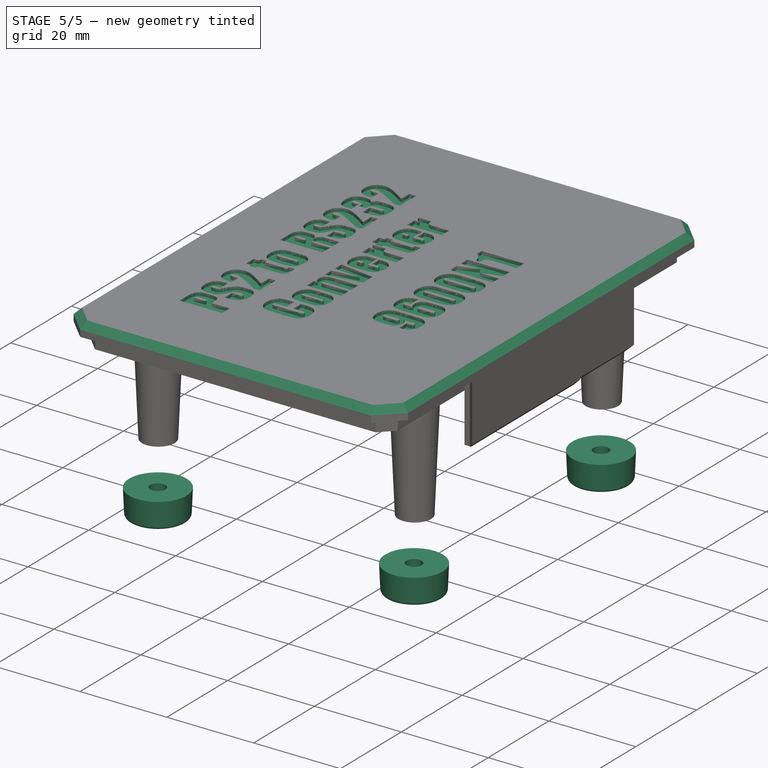
[diagram: stage 5 of 5 — iso view after this stage's code; geometry added in this stage tinted green]
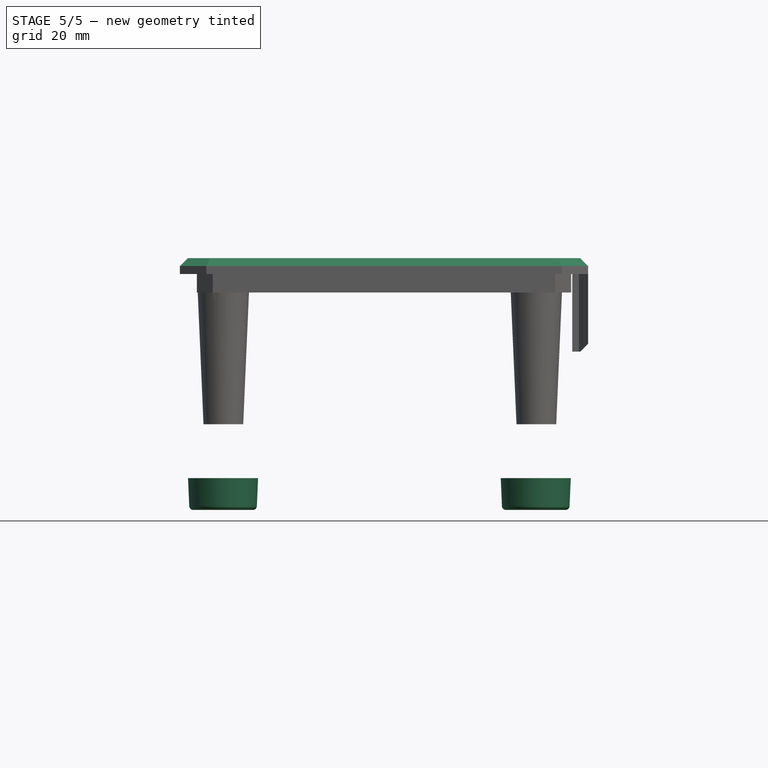
[diagram: stage 5 of 5 — front view after this stage's code; geometry added in this stage tinted green]
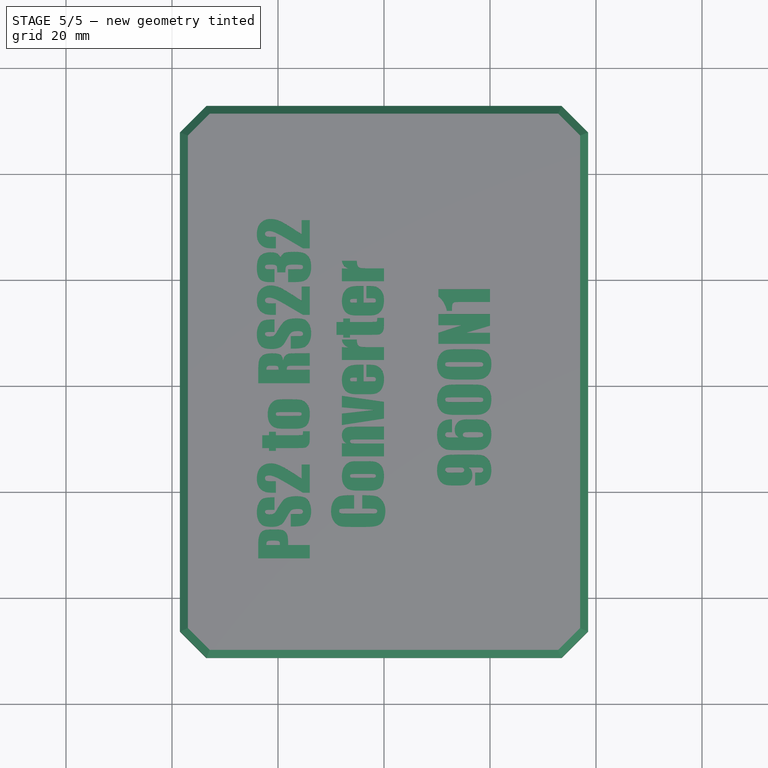
[diagram: stage 5 of 5 — top view after this stage's code; geometry added in this stage tinted green]
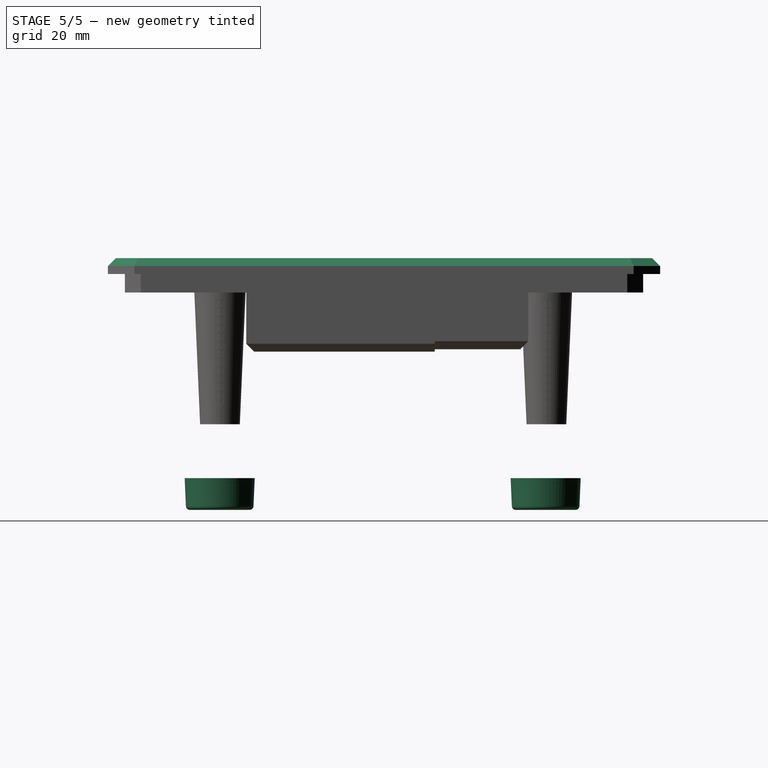
[diagram: stage 5 of 5 — right view after this stage's code; geometry added in this stage tinted green]
FEATURE [PartDesign::Chamfer] Chamfer007  label="top face aesthetic chamfer"
  Angle = 45
  Base = -> Chamfer006 [Face16]
  BaseFeature = -> Chamfer006
  ChamferType = 0
  FlipDirection = false
  Placement = pos=(0,0,-5) rot=(0,0,1;0rad)
  Size = 1.5
  Size2 = 1
  SupportTransform = false
  UseAllEdges = false
FEATURE [Part::Part2DObjectPython] ShapeString  # Draft 2D object (typed FeaturePython)
  FontFile = <userpath>/USERROOT/Fonts/impact.ttf
  MakeFace = true
  Placement = pos=(-14,-33.82,33) rot=(0,0,1;1.5708rad)
  Size = 10
  String = PS2 to RS232
  Tracking = 0
FEATURE [Part::Part2DObjectPython] ShapeString001  # Draft 2D object (typed FeaturePython)
  FontFile = <userpath>/USERROOT/Fonts/impact.ttf
  MakeFace = true
  Placement = pos=(0,-27.82,33) rot=(0,0,1;1.5708rad)
  Size = 10
  String = Converter
  Tracking = 0
FEATURE [Part::Part2DObjectPython] ShapeString002  # Draft 2D object (typed FeaturePython)
  FontFile = <userpath>/USERROOT/Fonts/impact.ttf
  MakeFace = true
  Placement = pos=(20,-20,33) rot=(0,0,1;1.5708rad)
  Size = 10
  String = 9600N1
  Tracking = 0
FEATURE [Sketcher::SketchObject] Sketch017
  FullyConstrained = false
  MapMode = 5
  Placement = pos=(0,0,33) rot=(0,0,1;0rad)
  Support = -> [Chamfer007]
  sketch-geometry (259):
    g0: LineSegment StartX=-23.7358 StartY=-33.3156 StartZ=0 EndX=-23.7358 EndY=-30.7696 EndZ=0
    g1: LineSegment StartX=-14 StartY=-33.3156 StartZ=0 EndX=-23.7358 EndY=-33.3156 EndZ=0
    g2: LineSegment StartX=-14 StartY=-30.7856 StartZ=0 EndX=-14 EndY=-33.3156 EndZ=0
    g3: LineSegment StartX=-18.0993 StartY=-30.7856 StartZ=0 EndX=-14 EndY=-30.7856 EndZ=0
    g4: LineSegment StartX=-18.0993 StartY=-30.105 StartZ=0 EndX=-18.0993 EndY=-30.7856 EndZ=0
    g5: BSplineCurve PolesCount=3 KnotsCount=2 Degree=2 IsPeriodic=0
    g6: BSplineCurve PolesCount=3 KnotsCount=2 Degree=2 IsPeriodic=0
    g7: BSplineCurve PolesCount=3 KnotsCount=2 Degree=2 IsPeriodic=0
    g8: LineSegment StartX=-21.0937 StartY=-27.8672 StartZ=0 EndX=-20.273 EndY=-27.8672 EndZ=0
    g9: BSplineCurve PolesCount=3 KnotsCount=2 Degree=2 IsPeriodic=0
    g10: BSplineCurve PolesCount=3 KnotsCount=2 Degree=2 IsPeriodic=0
    g11: BSplineCurve PolesCount=3 KnotsCount=2 Degree=2 IsPeriodic=0
    g12: BSplineCurve PolesCount=3 KnotsCount=2 Degree=2 IsPeriodic=0
    g13: LineSegment StartX=-22.1986 StartY=-30.7856 StartZ=0 EndX=-19.6445 EndY=-30.7856 EndZ=0
    g14: BSplineCurve PolesCount=3 KnotsCount=2 Degree=2 IsPeriodic=0
    g15: BSplineCurve PolesCount=3 KnotsCount=2 Degree=2 IsPeriodic=0
    g16: LineSegment StartX=-20.5492 StartY=-29.9809 StartZ=0 EndX=-21.3739 EndY=-29.9809 EndZ=0
    g17: BSplineCurve PolesCount=3 KnotsCount=2 Degree=2 IsPeriodic=0
    g18: BSplineCurve PolesCount=3 KnotsCount=2 Degree=2 IsPeriodic=0
    g19: BSplineCurve PolesCount=3 KnotsCount=2 Degree=2 IsPeriodic=0
    g20: LineSegment StartX=-20.6613 StartY=-21.8104 StartZ=0 EndX=-20.6613 EndY=-24.1563 EndZ=0
    g21: LineSegment StartX=-21.0697 StartY=-21.8104 StartZ=0 EndX=-20.6613 EndY=-21.8104 EndZ=0
    g22: BSplineCurve PolesCount=3 KnotsCount=2 Degree=2 IsPeriodic=0
    g23: BSplineCurve PolesCount=3 KnotsCount=2 Degree=2 IsPeriodic=0
    g24: BSplineCurve PolesCount=3 KnotsCount=2 Degree=2 IsPeriodic=0
    g25: BSplineCurve PolesCount=3 KnotsCount=2 Degree=2 IsPeriodic=0
    g26: BSplineCurve PolesCount=3 KnotsCount=2 Degree=2 IsPeriodic=0
    g27: BSplineCurve PolesCount=3 KnotsCount=2 Degree=2 IsPeriodic=0
    g28: BSplineCurve PolesCount=3 KnotsCount=2 Degree=2 IsPeriodic=0
    g29: BSplineCurve PolesCount=3 KnotsCount=2 Degree=2 IsPeriodic=0
    g30: BSplineCurve PolesCount=3 KnotsCount=2 Degree=2 IsPeriodic=0
    g31: BSplineCurve PolesCount=3 KnotsCount=2 Degree=2 IsPeriodic=0
    g32: BSplineCurve PolesCount=3 KnotsCount=2 Degree=2 IsPeriodic=0
    g33: BSplineCurve PolesCount=3 KnotsCount=2 Degree=2 IsPeriodic=0
    g34: BSplineCurve PolesCount=3 KnotsCount=2 Degree=2 IsPeriodic=0
    g35: BSplineCurve PolesCount=3 KnotsCount=2 Degree=2 IsPeriodic=0
    g36: BSplineCurve PolesCount=3 KnotsCount=2 Degree=2 IsPeriodic=0
    g37: LineSegment StartX=-17.5869 StartY=-24.9489 StartZ=0 EndX=-16.2498 EndY=-24.9489 EndZ=0
    g38: LineSegment StartX=-17.5869 StartY=-27.2988 StartZ=0 EndX=-17.5869 EndY=-24.9489 EndZ=0
    g39: LineSegment StartX=-16.9223 StartY=-27.2988 StartZ=0 EndX=-17.5869 EndY=-27.2988 EndZ=0
    g40: BSplineCurve PolesCount=3 KnotsCount=2 Degree=2 IsPeriodic=0
    g41: BSplineCurve PolesCount=3 KnotsCount=2 Degree=2 IsPeriodic=0
    g42: BSplineCurve PolesCount=3 KnotsCount=2 Degree=2 IsPeriodic=0
    g43: BSplineCurve PolesCount=3 KnotsCount=2 Degree=2 IsPeriodic=0
    g44: BSplineCurve PolesCount=3 KnotsCount=2 Degree=2 IsPeriodic=0
    g45: BSplineCurve PolesCount=3 KnotsCount=2 Degree=2 IsPeriodic=0
    g46: BSplineCurve PolesCount=3 KnotsCount=2 Degree=2 IsPeriodic=0
    g47: BSplineCurve PolesCount=3 KnotsCount=2 Degree=2 IsPeriodic=0
    g48: BSplineCurve PolesCount=3 KnotsCount=2 Degree=2 IsPeriodic=0
    g49: BSplineCurve PolesCount=3 KnotsCount=2 Degree=2 IsPeriodic=0
    g50: BSplineCurve PolesCount=3 KnotsCount=2 Degree=2 IsPeriodic=0
    g51: BSplineCurve PolesCount=3 KnotsCount=2 Degree=2 IsPeriodic=0
    g52: BSplineCurve PolesCount=3 KnotsCount=2 Degree=2 IsPeriodic=0
    g53: BSplineCurve PolesCount=3 KnotsCount=2 Degree=2 IsPeriodic=0
    g54: LineSegment StartX=-20.6613 StartY=-24.1563 StartZ=0 EndX=-21.522 EndY=-24.1563 EndZ=0
    g55: LineSegment StartX=-15.5372 StartY=-15.6014 StartZ=0 EndX=-14 EndY=-15.6014 EndZ=0
    g56: LineSegment StartX=-15.5372 StartY=-18.2636 StartZ=0 EndX=-15.5372 EndY=-15.6014 EndZ=0
    g57: BSplineCurve PolesCount=3 KnotsCount=2 Degree=2 IsPeriodic=0
    g58: BSplineCurve PolesCount=3 KnotsCount=2 Degree=2 IsPeriodic=0
    g59: BSplineCurve PolesCount=3 KnotsCount=2 Degree=2 IsPeriodic=0
    g60: BSplineCurve PolesCount=3 KnotsCount=2 Degree=2 IsPeriodic=0
    g61: BSplineCurve PolesCount=3 KnotsCount=2 Degree=2 IsPeriodic=0
    g62: BSplineCurve PolesCount=3 KnotsCount=2 Degree=2 IsPeriodic=0
    g63: BSplineCurve PolesCount=3 KnotsCount=2 Degree=2 IsPeriodic=0
    g64: BSplineCurve PolesCount=3 KnotsCount=2 Degree=2 IsPeriodic=0
    g65: LineSegment StartX=-20.4051 StartY=-20.9417 StartZ=0 EndX=-20.7694 EndY=-20.9417 EndZ=0
    g66: LineSegment StartX=-20.4051 StartY=-18.768 StartZ=0 EndX=-20.4051 EndY=-20.9417 EndZ=0
    g67: LineSegment StartX=-21.3539 StartY=-18.768 StartZ=0 EndX=-20.4051 EndY=-18.768 EndZ=0
    g68: BSplineCurve PolesCount=3 KnotsCount=2 Degree=2 IsPeriodic=0
    g69: BSplineCurve PolesCount=3 KnotsCount=2 Degree=2 IsPeriodic=0
    g70: BSplineCurve PolesCount=3 KnotsCount=2 Degree=2 IsPeriodic=0
    g71: BSplineCurve PolesCount=3 KnotsCount=2 Degree=2 IsPeriodic=0
    g72: BSplineCurve PolesCount=3 KnotsCount=2 Degree=2 IsPeriodic=0
    g73: BSplineCurve PolesCount=3 KnotsCount=2 Degree=2 IsPeriodic=0
    g74: LineSegment StartX=-14 StartY=-20.9417 StartZ=0 EndX=-15.281 EndY=-20.9417 EndZ=0
    g75: LineSegment StartX=-14 StartY=-15.6014 StartZ=0 EndX=-14 EndY=-20.9417 EndZ=0
    g76: LineSegment StartX=-22.9672 StartY=-10.077 StartZ=0 EndX=-21.6861 EndY=-10.077 EndZ=0
    g77: LineSegment StartX=-22.9672 StartY=-12.5069 StartZ=0 EndX=-22.9672 EndY=-10.077 EndZ=0
    g78: LineSegment StartX=-21.6861 StartY=-12.5069 StartZ=0 EndX=-22.9672 EndY=-12.5069 EndZ=0
    g79: LineSegment StartX=-21.6861 StartY=-13.0314 StartZ=0 EndX=-21.6861 EndY=-12.5069 EndZ=0
    g80: LineSegment StartX=-20.4051 StartY=-13.0314 StartZ=0 EndX=-21.6861 EndY=-13.0314 EndZ=0
    g81: LineSegment StartX=-20.4051 StartY=-12.5069 StartZ=0 EndX=-20.4051 EndY=-13.0314 EndZ=0
    g82: LineSegment StartX=-16.4259 StartY=-12.5069 StartZ=0 EndX=-20.4051 EndY=-12.5069 EndZ=0
    g83: BSplineCurve PolesCount=3 KnotsCount=2 Degree=2 IsPeriodic=0
    g84: BSplineCurve PolesCount=3 KnotsCount=2 Degree=2 IsPeriodic=0
    g85: BSplineCurve PolesCount=3 KnotsCount=2 Degree=2 IsPeriodic=0
    g86: BSplineCurve PolesCount=3 KnotsCount=2 Degree=2 IsPeriodic=0
    g87: LineSegment StartX=-14 StartY=-9.3204 StartZ=0 EndX=-14 EndY=-10.2972 EndZ=0
    g88: LineSegment StartX=-15.281 StartY=-9.3204 StartZ=0 EndX=-14 EndY=-9.3204 EndZ=0
    g89: BSplineCurve PolesCount=3 KnotsCount=2 Degree=2 IsPeriodic=0
    g90: BSplineCurve PolesCount=3 KnotsCount=2 Degree=2 IsPeriodic=0
    g91: LineSegment StartX=-20.4051 StartY=-10.077 StartZ=0 EndX=-16.2298 EndY=-10.077 EndZ=0
    g92: LineSegment StartX=-20.4051 StartY=-9.42048 StartZ=0 EndX=-20.4051 EndY=-10.077 EndZ=0
    g93: LineSegment StartX=-21.6861 StartY=-9.42048 StartZ=0 EndX=-20.4051 EndY=-9.42048 EndZ=0
    g94: LineSegment StartX=-21.6861 StartY=-10.077 StartZ=0 EndX=-21.6861 EndY=-9.42048 EndZ=0
    g95: LineSegment StartX=-19.1121 StartY=-3.30359 StartZ=0 EndX=-17.2346 EndY=-3.30359 EndZ=0
    g96: BSplineCurve PolesCount=3 KnotsCount=2 Degree=2 IsPeriodic=0
    g97: BSplineCurve PolesCount=3 KnotsCount=2 Degree=2 IsPeriodic=0
    g98: BSplineCurve PolesCount=3 KnotsCount=2 Degree=2 IsPeriodic=0
    g99: BSplineCurve PolesCount=3 KnotsCount=2 Degree=2 IsPeriodic=0
    g100: BSplineCurve PolesCount=3 KnotsCount=2 Degree=2 IsPeriodic=0
    g101: BSplineCurve PolesCount=3 KnotsCount=2 Degree=2 IsPeriodic=0
    g102: BSplineCurve PolesCount=3 KnotsCount=2 Degree=2 IsPeriodic=0
    g103: LineSegment StartX=-16.9824 StartY=-8.86404 StartZ=0 EndX=-18.944 EndY=-8.86404 EndZ=0
    g104: BSplineCurve PolesCount=3 KnotsCount=2 Degree=2 IsPeriodic=0
    g105: BSplineCurve PolesCount=3 KnotsCount=2 Degree=2 IsPeriodic=0
    g106: BSplineCurve PolesCount=3 KnotsCount=2 Degree=2 IsPeriodic=0
    g107: BSplineCurve PolesCount=3 KnotsCount=2 Degree=2 IsPeriodic=0
    g108: BSplineCurve PolesCount=3 KnotsCount=2 Degree=2 IsPeriodic=0
    g109: BSplineCurve PolesCount=3 KnotsCount=2 Degree=2 IsPeriodic=0
    g110: BSplineCurve PolesCount=3 KnotsCount=2 Degree=2 IsPeriodic=0
    g111: BSplineCurve PolesCount=3 KnotsCount=2 Degree=2 IsPeriodic=0
    g112: BSplineCurve PolesCount=3 KnotsCount=2 Degree=2 IsPeriodic=0
    g113: LineSegment StartX=-16.2778 StartY=-5.72953 StartZ=0 EndX=-19.5725 EndY=-5.72953 EndZ=0
    g114: BSplineCurve PolesCount=3 KnotsCount=2 Degree=2 IsPeriodic=0
    g115: BSplineCurve PolesCount=3 KnotsCount=2 Degree=2 IsPeriodic=0
    g116: BSplineCurve PolesCount=3 KnotsCount=2 Degree=2 IsPeriodic=0
    g117: BSplineCurve PolesCount=3 KnotsCount=2 Degree=2 IsPeriodic=0
    g118: LineSegment StartX=-19.5725 StartY=-6.43809 StartZ=0 EndX=-16.3499 EndY=-6.43809 EndZ=0
    g119: BSplineCurve PolesCount=3 KnotsCount=2 Degree=2 IsPeriodic=0
    g120: BSplineCurve PolesCount=3 KnotsCount=2 Degree=2 IsPeriodic=0
    g121: BSplineCurve PolesCount=3 KnotsCount=2 Degree=2 IsPeriodic=0
    g122: LineSegment StartX=-23.7358 StartY=-0.265156 StartZ=0 EndX=-23.7358 EndY=1.52428 EndZ=0
    g123: LineSegment StartX=-14 StartY=-0.265156 StartZ=0 EndX=-23.7358 EndY=-0.265156 EndZ=0
    g124: LineSegment StartX=-14 StartY=2.26487 StartZ=0 EndX=-14 EndY=-0.265156 EndZ=0
    g125: LineSegment StartX=-18.3555 StartY=2.26487 StartZ=0 EndX=-14 EndY=2.26487 EndZ=0
    g126: BSplineCurve PolesCount=3 KnotsCount=2 Degree=2 IsPeriodic=0
    g127: BSplineCurve PolesCount=3 KnotsCount=2 Degree=2 IsPeriodic=0
    g128: LineSegment StartX=-14 StartY=3.03348 StartZ=0 EndX=-17.2106 EndY=3.03348 EndZ=0
    g129: LineSegment StartX=-14 StartY=5.37936 StartZ=0 EndX=-14 EndY=3.03348 EndZ=0
    g130: LineSegment StartX=-16.554 StartY=5.37936 StartZ=0 EndX=-14 EndY=5.37936 EndZ=0
    g131: BSplineCurve PolesCount=3 KnotsCount=2 Degree=2 IsPeriodic=0
    g132: BSplineCurve PolesCount=3 KnotsCount=2 Degree=2 IsPeriodic=0
    g133: BSplineCurve PolesCount=3 KnotsCount=2 Degree=2 IsPeriodic=0
    g134: BSplineCurve PolesCount=3 KnotsCount=2 Degree=2 IsPeriodic=0
    g135: BSplineCurve PolesCount=3 KnotsCount=2 Degree=2 IsPeriodic=0
    g136: BSplineCurve PolesCount=3 KnotsCount=2 Degree=2 IsPeriodic=0
    g137: BSplineCurve PolesCount=3 KnotsCount=2 Degree=2 IsPeriodic=0
    g138: BSplineCurve PolesCount=3 KnotsCount=2 Degree=2 IsPeriodic=0
    g139: LineSegment StartX=-22.1986 StartY=2.26487 StartZ=0 EndX=-19.8927 EndY=2.26487 EndZ=0
    g140: BSplineCurve PolesCount=3 KnotsCount=2 Degree=2 IsPeriodic=0
    g141: BSplineCurve PolesCount=3 KnotsCount=2 Degree=2 IsPeriodic=0
    g142: LineSegment StartX=-20.8295 StartY=3.03348 StartZ=0 EndX=-21.3979 EndY=3.03348 EndZ=0
    g143: BSplineCurve PolesCount=3 KnotsCount=2 Degree=2 IsPeriodic=0
    g144: BSplineCurve PolesCount=3 KnotsCount=2 Degree=2 IsPeriodic=0
    g145: LineSegment StartX=-20.6613 StartY=11.7525 StartZ=0 EndX=-20.6613 EndY=9.40658 EndZ=0
    g146: LineSegment StartX=-21.0697 StartY=11.7525 StartZ=0 EndX=-20.6613 EndY=11.7525 EndZ=0
    g147: BSplineCurve PolesCount=3 KnotsCount=2 Degree=2 IsPeriodic=0
    g148: BSplineCurve PolesCount=3 KnotsCount=2 Degree=2 IsPeriodic=0
    g149: BSplineCurve PolesCount=3 KnotsCount=2 Degree=2 IsPeriodic=0
    g150: BSplineCurve PolesCount=3 KnotsCount=2 Degree=2 IsPeriodic=0
    g151: BSplineCurve PolesCount=3 KnotsCount=2 Degree=2 IsPeriodic=0
    g152: BSplineCurve PolesCount=3 KnotsCount=2 Degree=2 IsPeriodic=0
    g153: BSplineCurve PolesCount=3 KnotsCount=2 Degree=2 IsPeriodic=0
    g154: BSplineCurve PolesCount=3 KnotsCount=2 Degree=2 IsPeriodic=0
    g155: BSplineCurve PolesCount=3 KnotsCount=2 Degree=2 IsPeriodic=0
    g156: BSplineCurve PolesCount=3 KnotsCount=2 Degree=2 IsPeriodic=0
    g157: BSplineCurve PolesCount=3 KnotsCount=2 Degree=2 IsPeriodic=0
    g158: BSplineCurve PolesCount=3 KnotsCount=2 Degree=2 IsPeriodic=0
    g159: BSplineCurve PolesCount=3 KnotsCount=2 Degree=2 IsPeriodic=0
    g160: BSplineCurve PolesCount=3 KnotsCount=2 Degree=2 IsPeriodic=0
    g161: BSplineCurve PolesCount=3 KnotsCount=2 Degree=2 IsPeriodic=0
    g162: LineSegment StartX=-17.5869 StartY=8.61395 StartZ=0 EndX=-16.2498 EndY=8.61395 EndZ=0
    g163: LineSegment StartX=-17.5869 StartY=6.26407 StartZ=0 EndX=-17.5869 EndY=8.61395 EndZ=0
    g164: LineSegment StartX=-16.9223 StartY=6.26407 StartZ=0 EndX=-17.5869 EndY=6.26407 EndZ=0
    g165: BSplineCurve PolesCount=3 KnotsCount=2 Degree=2 IsPeriodic=0
    g166: BSplineCurve PolesCount=3 KnotsCount=2 Degree=2 IsPeriodic=0
    g167: BSplineCurve PolesCount=3 KnotsCount=2 Degree=2 IsPeriodic=0
    g168: BSplineCurve PolesCount=3 KnotsCount=2 Degree=2 IsPeriodic=0
    g169: BSplineCurve PolesCount=3 KnotsCount=2 Degree=2 IsPeriodic=0
    g170: BSplineCurve PolesCount=3 KnotsCount=2 Degree=2 IsPeriodic=0
    g171: BSplineCurve PolesCount=3 KnotsCount=2 Degree=2 IsPeriodic=0
    g172: BSplineCurve PolesCount=3 KnotsCount=2 Degree=2 IsPeriodic=0
    g173: BSplineCurve PolesCount=3 KnotsCount=2 Degree=2 IsPeriodic=0
    g174: BSplineCurve PolesCount=3 KnotsCount=2 Degree=2 IsPeriodic=0
    g175: BSplineCurve PolesCount=3 KnotsCount=2 Degree=2 IsPeriodic=0
    g176: BSplineCurve PolesCount=3 KnotsCount=2 Degree=2 IsPeriodic=0
    g177: BSplineCurve PolesCount=3 KnotsCount=2 Degree=2 IsPeriodic=0
    g178: BSplineCurve PolesCount=3 KnotsCount=2 Degree=2 IsPeriodic=0
    g179: LineSegment StartX=-20.6613 StartY=9.40658 StartZ=0 EndX=-21.522 EndY=9.40658 EndZ=0
    g180: LineSegment StartX=-15.5372 StartY=17.9614 StartZ=0 EndX=-14 EndY=17.9614 EndZ=0
    g181: LineSegment StartX=-15.5372 StartY=15.2993 StartZ=0 EndX=-15.5372 EndY=17.9614 EndZ=0
    g182: BSplineCurve PolesCount=3 KnotsCount=2 Degree=2 IsPeriodic=0
    g183: BSplineCurve PolesCount=3 KnotsCount=2 Degree=2 IsPeriodic=0
    g184: BSplineCurve PolesCount=3 KnotsCount=2 Degree=2 IsPeriodic=0
    g185: BSplineCurve PolesCount=3 KnotsCount=2 Degree=2 IsPeriodic=0
    g186: BSplineCurve PolesCount=3 KnotsCount=2 Degree=2 IsPeriodic=0
    g187: BSplineCurve PolesCount=3 KnotsCount=2 Degree=2 IsPeriodic=0
    g188: BSplineCurve PolesCount=3 KnotsCount=2 Degree=2 IsPeriodic=0
    g189: BSplineCurve PolesCount=3 KnotsCount=2 Degree=2 IsPeriodic=0
    g190: LineSegment StartX=-20.4051 StartY=12.6212 StartZ=0 EndX=-20.7694 EndY=12.6212 EndZ=0
    g191: LineSegment StartX=-20.4051 StartY=14.7949 StartZ=0 EndX=-20.4051 EndY=12.6212 EndZ=0
    g192: LineSegment StartX=-21.3539 StartY=14.7949 StartZ=0 EndX=-20.4051 EndY=14.7949 EndZ=0
    g193: BSplineCurve PolesCount=3 KnotsCount=2 Degree=2 IsPeriodic=0
    g194: BSplineCurve PolesCount=3 KnotsCount=2 Degree=2 IsPeriodic=0
    g195: BSplineCurve PolesCount=3 KnotsCount=2 Degree=2 IsPeriodic=0
    g196: BSplineCurve PolesCount=3 KnotsCount=2 Degree=2 IsPeriodic=0
    g197: BSplineCurve PolesCount=3 KnotsCount=2 Degree=2 IsPeriodic=0
    g198: BSplineCurve PolesCount=3 KnotsCount=2 Degree=2 IsPeriodic=0
    g199: LineSegment StartX=-14 StartY=12.6212 StartZ=0 EndX=-15.281 EndY=12.6212 EndZ=0
    g200: LineSegment StartX=-14 StartY=17.9614 StartZ=0 EndX=-14 EndY=12.6212 EndZ=0
    g201: BSplineCurve PolesCount=3 KnotsCount=2 Degree=2 IsPeriodic=0
    g202: BSplineCurve PolesCount=3 KnotsCount=2 Degree=2 IsPeriodic=0
    g203: BSplineCurve PolesCount=3 KnotsCount=2 Degree=2 IsPeriodic=0
    g204: BSplineCurve PolesCount=3 KnotsCount=2 Degree=2 IsPeriodic=0
    g205: BSplineCurve PolesCount=3 KnotsCount=2 Degree=2 IsPeriodic=0
    g206: BSplineCurve PolesCount=3 KnotsCount=2 Degree=2 IsPeriodic=0
    g207: BSplineCurve PolesCount=3 KnotsCount=2 Degree=2 IsPeriodic=0
    g208: LineSegment StartX=-20.6613 StartY=18.8061 StartZ=0 EndX=-21.522 EndY=18.8061 EndZ=0
    g209: LineSegment StartX=-20.6613 StartY=21.232 StartZ=0 EndX=-20.6613 EndY=18.8061 EndZ=0
    g210: LineSegment StartX=-21.506 StartY=21.232 StartZ=0 EndX=-20.6613 EndY=21.232 EndZ=0
    g211: BSplineCurve PolesCount=3 KnotsCount=2 Degree=2 IsPeriodic=0
    g212: BSplineCurve PolesCount=3 KnotsCount=2 Degree=2 IsPeriodic=0
    g213: BSplineCurve PolesCount=3 KnotsCount=2 Degree=2 IsPeriodic=0
    g214: BSplineCurve PolesCount=3 KnotsCount=2 Degree=2 IsPeriodic=0
    g215: LineSegment StartX=-21.1497 StartY=22.1047 StartZ=0 EndX=-21.6621 EndY=22.1047 EndZ=0
    g216: BSplineCurve PolesCount=3 KnotsCount=2 Degree=2 IsPeriodic=0
    g217: BSplineCurve PolesCount=3 KnotsCount=2 Degree=2 IsPeriodic=0
    g218: BSplineCurve PolesCount=3 KnotsCount=2 Degree=2 IsPeriodic=0
    g219: LineSegment StartX=-18.6117 StartY=20.6516 StartZ=0 EndX=-20.1489 EndY=20.6516 EndZ=0
    g220: BSplineCurve PolesCount=3 KnotsCount=2 Degree=2 IsPeriodic=0
    g221: BSplineCurve PolesCount=3 KnotsCount=2 Degree=2 IsPeriodic=0
    g222: BSplineCurve PolesCount=3 KnotsCount=2 Degree=2 IsPeriodic=0
    g223: LineSegment StartX=-16.6541 StartY=22.1047 StartZ=0 EndX=-17.3387 EndY=22.1047 EndZ=0
    g224: BSplineCurve PolesCount=3 KnotsCount=2 Degree=2 IsPeriodic=0
    g225: BSplineCurve PolesCount=3 KnotsCount=2 Degree=2 IsPeriodic=0
    g226: BSplineCurve PolesCount=3 KnotsCount=2 Degree=2 IsPeriodic=0
    g227: BSplineCurve PolesCount=3 KnotsCount=2 Degree=2 IsPeriodic=0
    g228: LineSegment StartX=-18.0993 StartY=21.232 StartZ=0 EndX=-16.3539 EndY=21.232 EndZ=0
    g229: LineSegment StartX=-18.0993 StartY=18.8061 StartZ=0 EndX=-18.0993 EndY=21.232 EndZ=0
    g230: LineSegment StartX=-17.2746 StartY=18.8061 StartZ=0 EndX=-18.0993 EndY=18.8061 EndZ=0
    g231: BSplineCurve PolesCount=3 KnotsCount=2 Degree=2 IsPeriodic=0
    g232: BSplineCurve PolesCount=3 KnotsCount=2 Degree=2 IsPeriodic=0
    g233: BSplineCurve PolesCount=3 KnotsCount=2 Degree=2 IsPeriodic=0
    g234: BSplineCurve PolesCount=3 KnotsCount=2 Degree=2 IsPeriodic=0
    g235: BSplineCurve PolesCount=3 KnotsCount=2 Degree=2 IsPeriodic=0
    g236: BSplineCurve PolesCount=3 KnotsCount=2 Degree=2 IsPeriodic=0
    g237: BSplineCurve PolesCount=3 KnotsCount=2 Degree=2 IsPeriodic=0
    g238: LineSegment StartX=-15.5372 StartY=30.5155 StartZ=0 EndX=-14 EndY=30.5155 EndZ=0
    g239: LineSegment StartX=-15.5372 StartY=27.8533 StartZ=0 EndX=-15.5372 EndY=30.5155 EndZ=0
    g240: BSplineCurve PolesCount=3 KnotsCount=2 Degree=2 IsPeriodic=0
    g241: BSplineCurve PolesCount=3 KnotsCount=2 Degree=2 IsPeriodic=0
    g242: BSplineCurve PolesCount=3 KnotsCount=2 Degree=2 IsPeriodic=0
    g243: BSplineCurve PolesCount=3 KnotsCount=2 Degree=2 IsPeriodic=0
    g244: BSplineCurve PolesCount=3 KnotsCount=2 Degree=2 IsPeriodic=0
    g245: BSplineCurve PolesCount=3 KnotsCount=2 Degree=2 IsPeriodic=0
    g246: BSplineCurve PolesCount=3 KnotsCount=2 Degree=2 IsPeriodic=0
    g247: BSplineCurve PolesCount=3 KnotsCount=2 Degree=2 IsPeriodic=0
    g248: LineSegment StartX=-20.4051 StartY=25.1752 StartZ=0 EndX=-20.7694 EndY=25.1752 EndZ=0
    g249: LineSegment StartX=-20.4051 StartY=27.3489 StartZ=0 EndX=-20.4051 EndY=25.1752 EndZ=0
    g250: LineSegment StartX=-21.3539 StartY=27.3489 StartZ=0 EndX=-20.4051 EndY=27.3489 EndZ=0
    g251: BSplineCurve PolesCount=3 KnotsCount=2 Degree=2 IsPeriodic=0
    g252: BSplineCurve PolesCount=3 KnotsCount=2 Degree=2 IsPeriodic=0
    g253: BSplineCurve PolesCount=3 KnotsCount=2 Degree=2 IsPeriodic=0
    g254: BSplineCurve PolesCount=3 KnotsCount=2 Degree=2 IsPeriodic=0
    g255: BSplineCurve PolesCount=3 KnotsCount=2 Degree=2 IsPeriodic=0
    g256: BSplineCurve PolesCount=3 KnotsCount=2 Degree=2 IsPeriodic=0
    g257: LineSegment StartX=-14 StartY=25.1752 StartZ=0 EndX=-15.281 EndY=25.1752 EndZ=0
    g258: LineSegment StartX=-14 StartY=30.5155 StartZ=0 EndX=-14 EndY=25.1752 EndZ=0
  constraints (323):
    c: Vertical(g0)
    c: Coincident(g0,g1)
    c: Horizontal(g1)
    c: Coincident(g1,g2)
    c: Vertical(g2)
    c: Coincident(g2,g3)
    c: Horizontal(g3)
    c: Coincident(g3,g4)
    c: Vertical(g4)
    c: Coincident(g4,g5)
    c: Coincident(g5,g6)
    c: Coincident(g6,g7)
    c: Coincident(g7,g8)
    c: Horizontal(g8)
    c: Coincident(g8,g9)
    c: Coincident(g9,g10)
    c: Coincident(g10,g11)
    c: Coincident(g11,g12)
    c: Coincident(g12,g0)
    c: Horizontal(g13)
    c: Coincident(g13,g14)
    c: Coincident(g14,g15)
    c: Coincident(g15,g16)
    c: Horizontal(g16)
    c: Coincident(g16,g17)
    c: Coincident(g17,g18)
    c: Coincident(g18,g19)
    c: Coincident(g19,g13)
    c: Vertical(g20)
    c: Coincident(g20,g21)
    c: Horizontal(g21)
    c: Coincident(g21,g22)
    c: Coincident(g22,g23)
    c: Coincident(g23,g24)
    c: Coincident(g24,g25)
    c: Coincident(g25,g26)
    c: Coincident(g26,g27)
    c: Coincident(g27,g28)
    c: Coincident(g28,g29)
    c: Coincident(g29,g30)
    c: Coincident(g30,g31)
    c: Coincident(g31,g32)
    c: Coincident(g32,g33)
    c: Coincident(g33,g34)
    c: Coincident(g34,g35)
    c: Coincident(g35,g36)
    c: Coincident(g36,g37)
    c: Horizontal(g37)
    c: Coincident(g37,g38)
    c: Vertical(g38)
    c: Coincident(g38,g39)
    c: Horizontal(g39)
    c: Coincident(g39,g40)
    c: Coincident(g40,g41)
    c: Coincident(g41,g42)
    c: Coincident(g42,g43)
    c: Coincident(g43,g44)
    c: Coincident(g44,g45)
    c: Coincident(g45,g46)
    c: Coincident(g46,g47)
    c: Coincident(g47,g48)
    c: Coincident(g48,g49)
    c: Coincident(g49,g50)
    c: Coincident(g50,g51)
    c: Coincident(g51,g52)
    c: Coincident(g52,g53)
    c: Coincident(g53,g54)
    c: Horizontal(g54)
    c: Coincident(g54,g20)
    c: Horizontal(g55)
    c: Coincident(g55,g56)
    c: Vertical(g56)
    c: Coincident(g56,g57)
    c: Coincident(g57,g58)
    c: Coincident(g58,g59)
    c: Coincident(g59,g60)
    c: Coincident(g60,g61)
    c: Coincident(g61,g62)
    c: Coincident(g62,g63)
    c: Coincident(g63,g64)
    c: Coincident(g64,g65)
    c: Horizontal(g65)
    c: Coincident(g65,g66)
    c: Vertical(g66)
    c: Coincident(g66,g67)
    c: Horizontal(g67)
    c: Coincident(g67,g68)
    c: Coincident(g68,g69)
    c: Coincident(g69,g70)
    c: Coincident(g70,g71)
    c: Coincident(g71,g72)
    c: Coincident(g72,g73)
    c: Coincident(g73,g74)
    c: Horizontal(g74)
    c: Coincident(g74,g75)
    c: Coincident(g75,g55)
    c: Horizontal(g76)
    c: Coincident(g76,g77)
    c: Vertical(g77)
    c: Coincident(g77,g78)
    c: Horizontal(g78)
    c: Coincident(g78,g79)
    c: Vertical(g79)
    c: Coincident(g79,g80)
    c: Horizontal(g80)
    c: Coincident(g80,g81)
    c: Vertical(g81)
    c: Coincident(g81,g82)
    c: Horizontal(g82)
    c: Coincident(g82,g83)
    c: Coincident(g83,g84)
    c: Coincident(g84,g85)
    c: Coincident(g85,g86)
    c: Coincident(g86,g87)
    c: Vertical(g87)
    c: Coincident(g87,g88)
    c: Horizontal(g88)
    c: Coincident(g88,g89)
    c: Coincident(g89,g90)
    c: Coincident(g90,g91)
    c: Coincident(g91,g92)
    c: Vertical(g92)
    c: Coincident(g92,g93)
    c: Horizontal(g93)
    c: Coincident(g93,g94)
    c: Vertical(g94)
    c: Coincident(g94,g76)
    c: Coincident(g95,g96)
    c: Coincident(g96,g97)
    c: Coincident(g97,g98)
    c: Coincident(g98,g99)
    c: Coincident(g99,g100)
    c: Coincident(g100,g101)
    c: Coincident(g101,g102)
    c: Coincident(g102,g103)
    c: Horizontal(g103)
    c: Coincident(g103,g104)
    c: Coincident(g104,g105)
    c: Coincident(g105,g106)
    c: Coincident(g106,g107)
    c: Coincident(g107,g108)
    c: Coincident(g108,g109)
    c: Coincident(g109,g110)
    c: Coincident(g110,g111)
    c: Coincident(g111,g95)
    c: Coincident(g112,g113)
    c: Coincident(g113,g114)
    c: Coincident(g114,g115)
    c: Coincident(g115,g116)
    c: Coincident(g116,g117)
    c: Coincident(g117,g118)
    c: Coincident(g118,g119)
    c: Coincident(g119,g120)
    c: Coincident(g120,g121)
    c: Coincident(g121,g112)
    c: Vertical(g122)
    c: Coincident(g122,g123)
    c: Coincident(g123,g124)
    c: Vertical(g124)
    c: Coincident(g124,g125)
    c: Coincident(g125,g126)
    c: Coincident(g126,g127)
    c: Coincident(g127,g128)
    c: Coincident(g128,g129)
    c: Vertical(g129)
    c: Coincident(g129,g130)
    c: Coincident(g130,g131)
    c: Coincident(g131,g132)
    c: Coincident(g132,g133)
    c: Coincident(g133,g134)
    c: Coincident(g134,g135)
    c: Coincident(g135,g136)
    c: Coincident(g136,g137)
    c: Coincident(g137,g138)
    c: Coincident(g138,g122)
    c: Coincident(g139,g140)
    c: Coincident(g140,g141)
    c: Coincident(g141,g142)
    c: Horizontal(g142)
    c: Coincident(g142,g143)
    c: Coincident(g143,g144)
    c: Coincident(g144,g139)
    c: Vertical(g145)
    c: Coincident(g145,g146)
    c: Horizontal(g146)
    c: Coincident(g146,g147)
    c: Coincident(g147,g148)
    c: Coincident(g148,g149)
    c: Coincident(g149,g150)
    c: Coincident(g150,g151)
    c: Coincident(g151,g152)
    c: Coincident(g152,g153)
    c: Coincident(g153,g154)
    c: Coincident(g154,g155)
    c: Coincident(g155,g156)
    c: Coincident(g156,g157)
    c: Coincident(g157,g158)
    c: Coincident(g158,g159)
    c: Coincident(g159,g160)
    c: Coincident(g160,g161)
    c: Coincident(g161,g162)
    c: Horizontal(g162)
    c: Coincident(g162,g163)
    c: Vertical(g163)
    c: Coincident(g163,g164)
    c: Horizontal(g164)
    c: Coincident(g164,g165)
    c: Coincident(g165,g166)
    c: Coincident(g166,g167)
    c: Coincident(g167,g168)
    c: Coincident(g168,g169)
    c: Coincident(g169,g170)
    c: Coincident(g170,g171)
    c: Coincident(g171,g172)
    c: Coincident(g172,g173)
    c: Coincident(g173,g174)
    c: Coincident(g174,g175)
    c: Coincident(g175,g176)
    c: Coincident(g176,g177)
    c: Coincident(g177,g178)
    c: Coincident(g178,g179)
    c: Horizontal(g179)
    c: Coincident(g179,g145)
    c: Horizontal(g180)
    c: Coincident(g180,g181)
    c: Vertical(g181)
    c: Coincident(g181,g182)
    c: Coincident(g182,g183)
    c: Coincident(g183,g184)
    c: Coincident(g184,g185)
    c: Coincident(g185,g186)
    c: Coincident(g186,g187)
    c: Coincident(g187,g188)
    c: Coincident(g188,g189)
    c: Coincident(g189,g190)
    c: Horizontal(g190)
    c: Coincident(g190,g191)
    c: Vertical(g191)
    c: Coincident(g191,g192)
    c: Horizontal(g192)
    c: Coincident(g192,g193)
    c: Coincident(g193,g194)
    c: Coincident(g194,g195)
    c: Coincident(g195,g196)
    c: Coincident(g196,g197)
    c: Coincident(g197,g198)
    c: Coincident(g198,g199)
    c: Horizontal(g199)
    c: Coincident(g199,g200)
    c: Coincident(g200,g180)
    c: Coincident(g201,g202)
    c: Coincident(g202,g203)
    c: Coincident(g203,g204)
    c: Coincident(g204,g205)
    c: Coincident(g205,g206)
    c: Coincident(g206,g207)
    c: Coincident(g207,g208)
    c: Horizontal(g208)
    c: Coincident(g208,g209)
    c: Vertical(g209)
    c: Coincident(g209,g210)
    c: Horizontal(g210)
    c: Coincident(g210,g211)
    c: Coincident(g211,g212)
    c: Coincident(g212,g213)
    c: Coincident(g213,g214)
    c: Coincident(g214,g215)
    c: Horizontal(g215)
    c: Coincident(g215,g216)
    c: Coincident(g216,g217)
    c: Coincident(g217,g218)
    c: Coincident(g218,g219)
    c: Horizontal(g219)
    c: Coincident(g219,g220)
    c: Coincident(g220,g221)
    c: Coincident(g221,g222)
    c: Coincident(g222,g223)
    c: Horizontal(g223)
    c: Coincident(g223,g224)
    c: Coincident(g224,g225)
    c: Coincident(g225,g226)
    c: Coincident(g226,g227)
    c: Coincident(g227,g228)
    c: Horizontal(g228)
    c: Coincident(g228,g229)
    c: Vertical(g229)
    c: Coincident(g229,g230)
    c: Horizontal(g230)
    c: Coincident(g230,g231)
    c: Coincident(g231,g232)
    c: Coincident(g232,g233)
    c: Coincident(g233,g234)
    c: Coincident(g234,g235)
    c: Coincident(g235,g236)
    c: Coincident(g236,g237)
    c: Coincident(g237,g201)
    c: Horizontal(g238)
    c: Coincident(g238,g239)
    c: Vertical(g239)
    c: Coincident(g239,g240)
    c: Coincident(g240,g241)
    c: Coincident(g241,g242)
    c: Coincident(g242,g243)
    c: Coincident(g243,g244)
    c: Coincident(g244,g245)
    c: Coincident(g245,g246)
    c: Coincident(g246,g247)
    c: Coincident(g247,g248)
    c: Horizontal(g248)
    c: Coincident(g248,g249)
    c: Vertical(g249)
    c: Coincident(g249,g250)
    c: Horizontal(g250)
    c: Coincident(g250,g251)
    c: Coincident(g251,g252)
    c: Coincident(g252,g253)
    c: Coincident(g253,g254)
    c: Coincident(g254,g255)
    c: Coincident(g255,g256)
    c: Coincident(g256,g257)
    c: Horizontal(g257)
    c: Coincident(g257,g258)
    c: Coincident(g258,g238)
FEATURE [PartDesign::Pocket] Pocket006  label="Add top line of text"
  BaseFeature = -> Chamfer007
  Direction = (0,0,-1)
  Length = 0.75
  Length2 = 5
  Placement = pos=(0,0,-5) rot=(0,0,1;0rad)
  Profile = -> Sketch017
  ReferenceAxis = -> Sketch017 [N_Axis]
  Type = 0
FEATURE [Sketcher::SketchObject] Sketch018
  FullyConstrained = false
  MapMode = 5
  Placement = pos=(0,0,33) rot=(0,0,1;0rad)
  Support = -> [Pocket006]
  sketch-geometry (184):
    g0: LineSegment StartX=-5.63651 StartY=-21.4109 StartZ=0 EndX=-5.63651 EndY=-23.9409 EndZ=0
    g1: LineSegment StartX=-6.54123 StartY=-21.4109 StartZ=0 EndX=-5.63651 EndY=-21.4109 EndZ=0
    g2: BSplineCurve PolesCount=3 KnotsCount=2 Degree=2 IsPeriodic=0
    g3: BSplineCurve PolesCount=3 KnotsCount=2 Degree=2 IsPeriodic=0
    g4: BSplineCurve PolesCount=3 KnotsCount=2 Degree=2 IsPeriodic=0
    g5: BSplineCurve PolesCount=3 KnotsCount=2 Degree=2 IsPeriodic=0
    g6: BSplineCurve PolesCount=3 KnotsCount=2 Degree=2 IsPeriodic=0
    g7: BSplineCurve PolesCount=3 KnotsCount=2 Degree=2 IsPeriodic=0
    g8: BSplineCurve PolesCount=3 KnotsCount=2 Degree=2 IsPeriodic=0
    g9: LineSegment StartX=-3.44275 StartY=-27.3877 StartZ=0 EndX=-6.31705 EndY=-27.3877 EndZ=0
    g10: BSplineCurve PolesCount=3 KnotsCount=2 Degree=2 IsPeriodic=0
    g11: BSplineCurve PolesCount=3 KnotsCount=2 Degree=2 IsPeriodic=0
    g12: BSplineCurve PolesCount=3 KnotsCount=2 Degree=2 IsPeriodic=0
    g13: BSplineCurve PolesCount=3 KnotsCount=2 Degree=2 IsPeriodic=0
    g14: BSplineCurve PolesCount=3 KnotsCount=2 Degree=2 IsPeriodic=0
    g15: BSplineCurve PolesCount=3 KnotsCount=2 Degree=2 IsPeriodic=0
    g16: LineSegment StartX=-4.09928 StartY=-21.4109 StartZ=0 EndX=-3.69496 EndY=-21.4109 EndZ=0
    g17: LineSegment StartX=-4.09928 StartY=-23.9409 StartZ=0 EndX=-4.09928 EndY=-21.4109 EndZ=0
    g18: LineSegment StartX=-2.69816 StartY=-23.9409 StartZ=0 EndX=-4.09928 EndY=-23.9409 EndZ=0
    g19: BSplineCurve PolesCount=3 KnotsCount=2 Degree=2 IsPeriodic=0
    g20: BSplineCurve PolesCount=3 KnotsCount=2 Degree=2 IsPeriodic=0
    g21: BSplineCurve PolesCount=3 KnotsCount=2 Degree=2 IsPeriodic=0
    g22: BSplineCurve PolesCount=3 KnotsCount=2 Degree=2 IsPeriodic=0
    g23: LineSegment StartX=-7.21377 StartY=-24.8576 StartZ=0 EndX=-2.47798 EndY=-24.8576 EndZ=0
    g24: BSplineCurve PolesCount=3 KnotsCount=2 Degree=2 IsPeriodic=0
    g25: BSplineCurve PolesCount=3 KnotsCount=2 Degree=2 IsPeriodic=0
    g26: BSplineCurve PolesCount=3 KnotsCount=2 Degree=2 IsPeriodic=0
    g27: BSplineCurve PolesCount=3 KnotsCount=2 Degree=2 IsPeriodic=0
    g28: LineSegment StartX=-5.63651 StartY=-23.9409 StartZ=0 EndX=-7.34187 EndY=-23.9409 EndZ=0
    g29: LineSegment StartX=-5.11209 StartY=-14.9817 StartZ=0 EndX=-3.23459 EndY=-14.9817 EndZ=0
    g30: BSplineCurve PolesCount=3 KnotsCount=2 Degree=2 IsPeriodic=0
    g31: BSplineCurve PolesCount=3 KnotsCount=2 Degree=2 IsPeriodic=0
    g32: BSplineCurve PolesCount=3 KnotsCount=2 Degree=2 IsPeriodic=0
    g33: BSplineCurve PolesCount=3 KnotsCount=2 Degree=2 IsPeriodic=0
    g34: BSplineCurve PolesCount=3 KnotsCount=2 Degree=2 IsPeriodic=0
    g35: BSplineCurve PolesCount=3 KnotsCount=2 Degree=2 IsPeriodic=0
    g36: BSplineCurve PolesCount=3 KnotsCount=2 Degree=2 IsPeriodic=0
    g37: LineSegment StartX=-2.98239 StartY=-20.5422 StartZ=0 EndX=-4.94396 EndY=-20.5422 EndZ=0
    g38: BSplineCurve PolesCount=3 KnotsCount=2 Degree=2 IsPeriodic=0
    g39: BSplineCurve PolesCount=3 KnotsCount=2 Degree=2 IsPeriodic=0
    g40: BSplineCurve PolesCount=3 KnotsCount=2 Degree=2 IsPeriodic=0
    g41: BSplineCurve PolesCount=3 KnotsCount=2 Degree=2 IsPeriodic=0
    g42: BSplineCurve PolesCount=3 KnotsCount=2 Degree=2 IsPeriodic=0
    g43: BSplineCurve PolesCount=3 KnotsCount=2 Degree=2 IsPeriodic=0
    g44: BSplineCurve PolesCount=3 KnotsCount=2 Degree=2 IsPeriodic=0
    g45: BSplineCurve PolesCount=3 KnotsCount=2 Degree=2 IsPeriodic=0
    g46: BSplineCurve PolesCount=3 KnotsCount=2 Degree=2 IsPeriodic=0
    g47: LineSegment StartX=-2.27782 StartY=-17.4077 StartZ=0 EndX=-5.57246 EndY=-17.4077 EndZ=0
    g48: BSplineCurve PolesCount=3 KnotsCount=2 Degree=2 IsPeriodic=0
    g49: BSplineCurve PolesCount=3 KnotsCount=2 Degree=2 IsPeriodic=0
    g50: BSplineCurve PolesCount=3 KnotsCount=2 Degree=2 IsPeriodic=0
    g51: BSplineCurve PolesCount=3 KnotsCount=2 Degree=2 IsPeriodic=0
    g52: LineSegment StartX=-5.57246 StartY=-18.1162 StartZ=0 EndX=-2.34988 EndY=-18.1162 EndZ=0
    g53: BSplineCurve PolesCount=3 KnotsCount=2 Degree=2 IsPeriodic=0
    g54: BSplineCurve PolesCount=3 KnotsCount=2 Degree=2 IsPeriodic=0
    g55: BSplineCurve PolesCount=3 KnotsCount=2 Degree=2 IsPeriodic=0
    g56: LineSegment StartX=-7.94235 StartY=-11.595 StartZ=0 EndX=-7.10969 EndY=-11.6391 EndZ=0
    g57: LineSegment StartX=-7.94235 StartY=-14.065 StartZ=0 EndX=-7.94235 EndY=-11.595 EndZ=0
    g58: LineSegment StartX=3.1e-15 StartY=-14.065 StartZ=0 EndX=-7.94235 EndY=-14.065 EndZ=0
    g59: LineSegment StartX=3.6e-15 StartY=-11.6391 StartZ=0 EndX=3.1e-15 EndY=-14.065 EndZ=0
    g60: LineSegment StartX=-5.14812 StartY=-11.6391 StartZ=0 EndX=3.6e-15 EndY=-11.6391 EndZ=0
    g61: BSplineCurve PolesCount=3 KnotsCount=2 Degree=2 IsPeriodic=0
    g62: BSplineCurve PolesCount=3 KnotsCount=2 Degree=2 IsPeriodic=0
    g63: BSplineCurve PolesCount=3 KnotsCount=2 Degree=2 IsPeriodic=0
    g64: BSplineCurve PolesCount=3 KnotsCount=2 Degree=2 IsPeriodic=0
    g65: LineSegment StartX=3.8e-15 StartY=-10.8945 StartZ=0 EndX=-5.27622 EndY=-10.8945 EndZ=0
    g66: LineSegment StartX=4.3e-15 StartY=-8.46852 StartZ=0 EndX=3.8e-15 EndY=-10.8945 EndZ=0
    g67: LineSegment StartX=-5.46837 StartY=-8.46852 StartZ=0 EndX=4.4e-15 EndY=-8.46852 EndZ=0
    g68: BSplineCurve PolesCount=3 KnotsCount=2 Degree=2 IsPeriodic=0
    g69: BSplineCurve PolesCount=3 KnotsCount=2 Degree=2 IsPeriodic=0
    g70: BSplineCurve PolesCount=3 KnotsCount=2 Degree=2 IsPeriodic=0
    g71: BSplineCurve PolesCount=3 KnotsCount=2 Degree=2 IsPeriodic=0
    g72: BSplineCurve PolesCount=3 KnotsCount=2 Degree=2 IsPeriodic=0
    g73: LineSegment StartX=-7.94235 StartY=-2.64386 StartZ=0 EndX=5.3e-15 EndY=-3.78077 EndZ=0
    g74: LineSegment StartX=-7.94235 StartY=-4.81359 StartZ=0 EndX=-7.94235 EndY=-2.64386 EndZ=0
    g75: BSplineCurve PolesCount=3 KnotsCount=2 Degree=2 IsPeriodic=0
    g76: BSplineCurve PolesCount=3 KnotsCount=2 Degree=2 IsPeriodic=0
    g77: LineSegment StartX=-7.94235 StartY=-5.99454 StartZ=0 EndX=-1.89351 EndY=-5.318 EndZ=0
    g78: LineSegment StartX=-7.94235 StartY=-8.16428 StartZ=0 EndX=-7.94235 EndY=-5.99454 EndZ=0
    g79: LineSegment StartX=4.6e-15 StartY=-6.9433 StartZ=0 EndX=-7.94235 EndY=-8.16428 EndZ=0
    g80: LineSegment StartX=5.3e-15 StartY=-3.78077 StartZ=0 EndX=4.6e-15 EndY=-6.9433 EndZ=0
    g81: LineSegment StartX=-3.84307 StartY=3.21683 StartZ=0 EndX=-3.84307 EndY=0.0743155 EndZ=0
    g82: LineSegment StartX=-4.85588 StartY=3.21683 StartZ=0 EndX=-3.84307 EndY=3.21683 EndZ=0
    g83: BSplineCurve PolesCount=3 KnotsCount=2 Degree=2 IsPeriodic=0
    g84: BSplineCurve PolesCount=3 KnotsCount=2 Degree=2 IsPeriodic=0
    g85: BSplineCurve PolesCount=3 KnotsCount=2 Degree=2 IsPeriodic=0
    g86: BSplineCurve PolesCount=3 KnotsCount=2 Degree=2 IsPeriodic=0
    g87: BSplineCurve PolesCount=3 KnotsCount=2 Degree=2 IsPeriodic=0
    g88: BSplineCurve PolesCount=3 KnotsCount=2 Degree=2 IsPeriodic=0
    g89: LineSegment StartX=-2.92234 StartY=-2.35163 StartZ=0 EndX=-5.16013 EndY=-2.35163 EndZ=0
    g90: BSplineCurve PolesCount=3 KnotsCount=2 Degree=2 IsPeriodic=0
    g91: BSplineCurve PolesCount=3 KnotsCount=2 Degree=2 IsPeriodic=0
    g92: BSplineCurve PolesCount=3 KnotsCount=2 Degree=2 IsPeriodic=0
    g93: BSplineCurve PolesCount=3 KnotsCount=2 Degree=2 IsPeriodic=0
    g94: BSplineCurve PolesCount=3 KnotsCount=2 Degree=2 IsPeriodic=0
    g95: BSplineCurve PolesCount=3 KnotsCount=2 Degree=2 IsPeriodic=0
    g96: BSplineCurve PolesCount=3 KnotsCount=2 Degree=2 IsPeriodic=0
    g97: BSplineCurve PolesCount=3 KnotsCount=2 Degree=2 IsPeriodic=0
    g98: LineSegment StartX=-3.33066 StartY=3.21683 StartZ=0 EndX=-2.76621 EndY=3.21683 EndZ=0
    g99: LineSegment StartX=-3.33066 StartY=0.914988 StartZ=0 EndX=-3.33066 EndY=3.21683 EndZ=0
    g100: LineSegment StartX=-2.41393 StartY=0.914988 StartZ=0 EndX=-3.33066 EndY=0.914988 EndZ=0
    g101: BSplineCurve PolesCount=3 KnotsCount=2 Degree=2 IsPeriodic=0
    g102: BSplineCurve PolesCount=3 KnotsCount=2 Degree=2 IsPeriodic=0
    g103: BSplineCurve PolesCount=3 KnotsCount=2 Degree=2 IsPeriodic=0
    g104: BSplineCurve PolesCount=3 KnotsCount=2 Degree=2 IsPeriodic=0
    g105: LineSegment StartX=-3.84307 StartY=0.0743155 StartZ=0 EndX=-2.30184 EndY=0.0743155 EndZ=0
    g106: LineSegment StartX=-5.1241 StartY=0.782882 StartZ=0 EndX=-5.60048 EndY=0.782882 EndZ=0
    g107: LineSegment StartX=-5.1241 StartY=0.0743155 StartZ=0 EndX=-5.1241 EndY=0.782882 EndZ=0
    g108: LineSegment StartX=-5.60048 StartY=0.0743155 StartZ=0 EndX=-5.1241 EndY=0.0743155 EndZ=0
    g109: BSplineCurve PolesCount=3 KnotsCount=2 Degree=2 IsPeriodic=0
    g110: BSplineCurve PolesCount=3 KnotsCount=2 Degree=2 IsPeriodic=0
    g111: BSplineCurve PolesCount=3 KnotsCount=2 Degree=2 IsPeriodic=0
    g112: BSplineCurve PolesCount=3 KnotsCount=2 Degree=2 IsPeriodic=0
    g113: LineSegment StartX=-7.94235 StartY=6.5515 StartZ=0 EndX=-6.70536 EndY=6.45542 EndZ=0
    g114: LineSegment StartX=-7.94235 StartY=4.12556 StartZ=0 EndX=-7.94235 EndY=6.5515 EndZ=0
    g115: LineSegment StartX=7.1e-15 StartY=4.12556 StartZ=0 EndX=-7.94235 EndY=4.12556 EndZ=0
    g116: LineSegment StartX=7.6e-15 StartY=6.5515 StartZ=0 EndX=7.1e-15 EndY=4.12556 EndZ=0
    g117: LineSegment StartX=-3.03843 StartY=6.5515 StartZ=0 EndX=7.5e-15 EndY=6.5515 EndZ=0
    g118: BSplineCurve PolesCount=3 KnotsCount=2 Degree=2 IsPeriodic=0
    g119: BSplineCurve PolesCount=3 KnotsCount=2 Degree=2 IsPeriodic=0
    g120: BSplineCurve PolesCount=3 KnotsCount=2 Degree=2 IsPeriodic=0
    g121: LineSegment StartX=-7.94235 StartY=7.98865 StartZ=0 EndX=-5.1241 EndY=7.98865 EndZ=0
    g122: BSplineCurve PolesCount=3 KnotsCount=2 Degree=2 IsPeriodic=0
    g123: LineSegment StartX=-8.96717 StartY=11.2953 StartZ=0 EndX=-7.68615 EndY=11.2953 EndZ=0
    g124: LineSegment StartX=-8.96717 StartY=8.86535 StartZ=0 EndX=-8.96717 EndY=11.2953 EndZ=0
    g125: LineSegment StartX=-7.68615 StartY=8.86535 StartZ=0 EndX=-8.96717 EndY=8.86535 EndZ=0
    g126: LineSegment StartX=-7.68615 StartY=8.34093 StartZ=0 EndX=-7.68615 EndY=8.86535 EndZ=0
    g127: LineSegment StartX=-6.40512 StartY=8.34093 StartZ=0 EndX=-7.68615 EndY=8.34093 EndZ=0
    g128: LineSegment StartX=-6.40512 StartY=8.86535 StartZ=0 EndX=-6.40512 EndY=8.34093 EndZ=0
    g129: LineSegment StartX=-2.42594 StartY=8.86535 StartZ=0 EndX=-6.40512 EndY=8.86535 EndZ=0
    g130: BSplineCurve PolesCount=3 KnotsCount=2 Degree=2 IsPeriodic=0
    g131: BSplineCurve PolesCount=3 KnotsCount=2 Degree=2 IsPeriodic=0
    g132: BSplineCurve PolesCount=3 KnotsCount=2 Degree=2 IsPeriodic=0
    g133: BSplineCurve PolesCount=3 KnotsCount=2 Degree=2 IsPeriodic=0
    g134: LineSegment StartX=8.9e-15 StartY=12.0519 StartZ=0 EndX=8.6e-15 EndY=11.0751 EndZ=0
    g135: LineSegment StartX=-1.28102 StartY=12.0519 StartZ=0 EndX=8.9e-15 EndY=12.0519 EndZ=0
    g136: BSplineCurve PolesCount=3 KnotsCount=2 Degree=2 IsPeriodic=0
    g137: BSplineCurve PolesCount=3 KnotsCount=2 Degree=2 IsPeriodic=0
    g138: LineSegment StartX=-6.40512 StartY=11.2953 StartZ=0 EndX=-2.22978 EndY=11.2953 EndZ=0
    g139: LineSegment StartX=-6.40512 StartY=11.9518 StartZ=0 EndX=-6.40512 EndY=11.2953 EndZ=0
    g140: LineSegment StartX=-7.68615 StartY=11.9518 StartZ=0 EndX=-6.40512 EndY=11.9518 EndZ=0
    g141: LineSegment StartX=-7.68615 StartY=11.2953 StartZ=0 EndX=-7.68615 EndY=11.9518 EndZ=0
    g142: LineSegment StartX=-3.84307 StartY=18.0767 StartZ=0 EndX=-3.84307 EndY=14.9342 EndZ=0
    g143: LineSegment StartX=-4.85588 StartY=18.0767 StartZ=0 EndX=-3.84307 EndY=18.0767 EndZ=0
    g144: BSplineCurve PolesCount=3 KnotsCount=2 Degree=2 IsPeriodic=0
    g145: BSplineCurve PolesCount=3 KnotsCount=2 Degree=2 IsPeriodic=0
    g146: BSplineCurve PolesCount=3 KnotsCount=2 Degree=2 IsPeriodic=0
    g147: BSplineCurve PolesCount=3 KnotsCount=2 Degree=2 IsPeriodic=0
    g148: BSplineCurve PolesCount=3 KnotsCount=2 Degree=2 IsPeriodic=0
    g149: BSplineCurve PolesCount=3 KnotsCount=2 Degree=2 IsPeriodic=0
    g150: LineSegment StartX=-2.92234 StartY=12.5083 StartZ=0 EndX=-5.16013 EndY=12.5083 EndZ=0
    g151: BSplineCurve PolesCount=3 KnotsCount=2 Degree=2 IsPeriodic=0
    g152: BSplineCurve PolesCount=3 KnotsCount=2 Degree=2 IsPeriodic=0
    g153: BSplineCurve PolesCount=3 KnotsCount=2 Degree=2 IsPeriodic=0
    g154: BSplineCurve PolesCount=3 KnotsCount=2 Degree=2 IsPeriodic=0
    g155: BSplineCurve PolesCount=3 KnotsCount=2 Degree=2 IsPeriodic=0
    g156: BSplineCurve PolesCount=3 KnotsCount=2 Degree=2 IsPeriodic=0
    g157: BSplineCurve PolesCount=3 KnotsCount=2 Degree=2 IsPeriodic=0
    g158: BSplineCurve PolesCount=3 KnotsCount=2 Degree=2 IsPeriodic=0
    g159: LineSegment StartX=-3.33066 StartY=18.0767 StartZ=0 EndX=-2.76621 EndY=18.0767 EndZ=0
    g160: LineSegment StartX=-3.33066 StartY=15.7749 StartZ=0 EndX=-3.33066 EndY=18.0767 EndZ=0
    g161: LineSegment StartX=-2.41393 StartY=15.7749 StartZ=0 EndX=-3.33066 EndY=15.7749 EndZ=0
    g162: BSplineCurve PolesCount=3 KnotsCount=2 Degree=2 IsPeriodic=0
    g163: BSplineCurve PolesCount=3 KnotsCount=2 Degree=2 IsPeriodic=0
    g164: BSplineCurve PolesCount=3 KnotsCount=2 Degree=2 IsPeriodic=0
    g165: BSplineCurve PolesCount=3 KnotsCount=2 Degree=2 IsPeriodic=0
    g166: LineSegment StartX=-3.84307 StartY=14.9342 StartZ=0 EndX=-2.30184 EndY=14.9342 EndZ=0
    g167: LineSegment StartX=-5.1241 StartY=15.6428 StartZ=0 EndX=-5.60048 EndY=15.6428 EndZ=0
    g168: LineSegment StartX=-5.1241 StartY=14.9342 StartZ=0 EndX=-5.1241 EndY=15.6428 EndZ=0
    g169: LineSegment StartX=-5.60048 StartY=14.9342 StartZ=0 EndX=-5.1241 EndY=14.9342 EndZ=0
    g170: BSplineCurve PolesCount=3 KnotsCount=2 Degree=2 IsPeriodic=0
    g171: BSplineCurve PolesCount=3 KnotsCount=2 Degree=2 IsPeriodic=0
    g172: BSplineCurve PolesCount=3 KnotsCount=2 Degree=2 IsPeriodic=0
    g173: BSplineCurve PolesCount=3 KnotsCount=2 Degree=2 IsPeriodic=0
    g174: LineSegment StartX=-7.94235 StartY=21.4114 StartZ=0 EndX=-6.70536 EndY=21.3153 EndZ=0
    g175: LineSegment StartX=-7.94235 StartY=18.9854 StartZ=0 EndX=-7.94235 EndY=21.4114 EndZ=0
    g176: LineSegment StartX=1.04e-14 StartY=18.9854 StartZ=0 EndX=-7.94235 EndY=18.9854 EndZ=0
    g177: LineSegment StartX=1.09e-14 StartY=21.4114 StartZ=0 EndX=1.04e-14 EndY=18.9854 EndZ=0
    g178: LineSegment StartX=-3.03843 StartY=21.4114 StartZ=0 EndX=1.11e-14 EndY=21.4114 EndZ=0
    g179: BSplineCurve PolesCount=3 KnotsCount=2 Degree=2 IsPeriodic=0
    g180: BSplineCurve PolesCount=3 KnotsCount=2 Degree=2 IsPeriodic=0
    g181: BSplineCurve PolesCount=3 KnotsCount=2 Degree=2 IsPeriodic=0
    g182: LineSegment StartX=-7.94235 StartY=22.8485 StartZ=0 EndX=-5.1241 EndY=22.8485 EndZ=0
    g183: BSplineCurve PolesCount=3 KnotsCount=2 Degree=2 IsPeriodic=0
  constraints (218):
    c: Coincident(g0,g1)
    c: Horizontal(g1)
    c: Coincident(g1,g2)
    c: Coincident(g2,g3)
    c: Coincident(g3,g4)
    c: Coincident(g4,g5)
    c: Coincident(g5,g6)
    c: Coincident(g6,g7)
    c: Coincident(g7,g8)
    c: Coincident(g8,g9)
    c: Horizontal(g9)
    c: Coincident(g9,g10)
    c: Coincident(g10,g11)
    c: Coincident(g11,g12)
    c: Coincident(g12,g13)
    c: Coincident(g13,g14)
    c: Coincident(g14,g15)
    c: Coincident(g15,g16)
    c: Horizontal(g16)
    c: Coincident(g16,g17)
    c: Coincident(g17,g18)
    c: Horizontal(g18)
    c: Coincident(g18,g19)
    c: Coincident(g19,g20)
    c: Coincident(g20,g21)
    c: Coincident(g21,g22)
    c: Coincident(g22,g23)
    c: Horizontal(g23)
    c: Coincident(g23,g24)
    c: Coincident(g24,g25)
    c: Coincident(g25,g26)
    c: Coincident(g26,g27)
    c: Coincident(g27,g28)
    c: Horizontal(g28)
    c: Coincident(g28,g0)
    c: Horizontal(g29)
    c: Coincident(g29,g30)
    c: Coincident(g30,g31)
    c: Coincident(g31,g32)
    c: Coincident(g32,g33)
    c: Coincident(g33,g34)
    c: Coincident(g34,g35)
    c: Coincident(g35,g36)
    c: Coincident(g36,g37)
    c: Horizontal(g37)
    c: Coincident(g37,g38)
    c: Coincident(g38,g39)
    c: Coincident(g39,g40)
    c: Coincident(g40,g41)
    c: Coincident(g41,g42)
    c: Coincident(g42,g43)
    c: Coincident(g43,g44)
    c: Coincident(g44,g45)
    c: Coincident(g45,g29)
    c: Coincident(g46,g47)
    c: Horizontal(g47)
    c: Coincident(g47,g48)
    c: Coincident(g48,g49)
    c: Coincident(g49,g50)
    c: Coincident(g50,g51)
    c: Coincident(g51,g52)
    c: Horizontal(g52)
    c: Coincident(g52,g53)
    c: Coincident(g53,g54)
    c: Coincident(g54,g55)
    c: Coincident(g55,g46)
    c: Coincident(g56,g57)
    c: Coincident(g57,g58)
    c: Coincident(g58,g59)
    c: Coincident(g59,g60)
    c: Coincident(g60,g61)
    c: Coincident(g61,g62)
    c: Coincident(g62,g63)
    c: Coincident(g63,g64)
    c: Coincident(g64,g65)
    c: Coincident(g65,g66)
    c: Coincident(g66,g67)
    c: Coincident(g67,g68)
    c: Coincident(g68,g69)
    c: Coincident(g69,g70)
    c: Coincident(g70,g71)
    c: Coincident(g71,g72)
    c: Coincident(g72,g56)
    c: Coincident(g73,g74)
    c: Coincident(g74,g75)
    c: Coincident(g75,g76)
    c: Coincident(g76,g77)
    c: Coincident(g77,g78)
    c: Coincident(g78,g79)
    c: Coincident(g79,g80)
    c: Coincident(g80,g73)
    c: Coincident(g81,g82)
    c: Coincident(g82,g83)
    c: Coincident(g83,g84)
    c: Coincident(g84,g85)
    c: Coincident(g85,g86)
    c: Coincident(g86,g87)
    c: Coincident(g87,g88)
    c: Coincident(g88,g89)
    c: Coincident(g89,g90)
    c: Coincident(g90,g91)
    c: Coincident(g91,g92)
    c: Coincident(g92,g93)
    c: Coincident(g93,g94)
    c: Coincident(g94,g95)
    c: Coincident(g95,g96)
    c: Coincident(g96,g97)
    c: Coincident(g97,g98)
    c: Horizontal(g98)
    c: Coincident(g98,g99)
    c: Coincident(g99,g100)
    c: Coincident(g100,g101)
    c: Coincident(g101,g102)
    c: Coincident(g102,g103)
    c: Coincident(g103,g104)
    c: Coincident(g104,g105)
    c: Coincident(g105,g81)
    c: Coincident(g106,g107)
    c: Vertical(g107)
    c: Coincident(g107,g108)
    c: Coincident(g108,g109)
    c: Coincident(g109,g110)
    c: Coincident(g110,g111)
    c: Coincident(g111,g112)
    c: Coincident(g112,g106)
    c: Coincident(g113,g114)
    c: Coincident(g114,g115)
    c: Coincident(g115,g116)
    c: Coincident(g116,g117)
    c: Coincident(g117,g118)
    c: Coincident(g118,g119)
    c: Coincident(g119,g120)
    c: Coincident(g120,g121)
    c: Coincident(g121,g122)
    c: Coincident(g122,g113)
    c: Horizontal(g123)
    c: Coincident(g123,g124)
    c: Vertical(g124)
    c: Coincident(g124,g125)
    c: Horizontal(g125)
    c: Coincident(g125,g126)
    c: Vertical(g126)
    c: Coincident(g126,g127)
    c: Horizontal(g127)
    c: Coincident(g127,g128)
    c: Vertical(g128)
    c: Coincident(g128,g129)
    c: Horizontal(g129)
    c: Coincident(g129,g130)
    c: Coincident(g130,g131)
    c: Coincident(g131,g132)
    c: Coincident(g132,g133)
    c: Coincident(g133,g134)
    c: Coincident(g134,g135)
    c: Horizontal(g135)
    c: Coincident(g135,g136)
    c: Coincident(g136,g137)
    c: Coincident(g137,g138)
    c: Coincident(g138,g139)
    c: Vertical(g139)
    c: Coincident(g139,g140)
    c: Horizontal(g140)
    c: Coincident(g140,g141)
    c: Vertical(g141)
    c: Coincident(g141,g123)
    c: Coincident(g142,g143)
    c: Horizontal(g143)
    c: Coincident(g143,g144)
    c: Coincident(g144,g145)
    c: Coincident(g145,g146)
    c: Coincident(g146,g147)
    c: Coincident(g147,g148)
    c: Coincident(g148,g149)
    c: Coincident(g149,g150)
    c: Horizontal(g150)
    c: Coincident(g150,g151)
    c: Coincident(g151,g152)
    c: Coincident(g152,g153)
    c: Coincident(g153,g154)
    c: Coincident(g154,g155)
    c: Coincident(g155,g156)
    c: Coincident(g156,g157)
    c: Coincident(g157,g158)
    c: Coincident(g158,g159)
    c: Horizontal(g159)
    c: Coincident(g159,g160)
    c: Coincident(g160,g161)
    c: Horizontal(g161)
    c: Coincident(g161,g162)
    c: Coincident(g162,g163)
    c: Coincident(g163,g164)
    c: Coincident(g164,g165)
    c: Coincident(g165,g166)
    c: Horizontal(g166)
    c: Coincident(g166,g142)
    c: Horizontal(g167)
    c: Coincident(g167,g168)
    c: Vertical(g168)
    c: Coincident(g168,g169)
    c: Horizontal(g169)
    c: Coincident(g169,g170)
    c: Coincident(g170,g171)
    c: Coincident(g171,g172)
    c: Coincident(g172,g173)
    c: Coincident(g173,g167)
    c: Coincident(g174,g175)
    c: Coincident(g175,g176)
    c: Horizontal(g176)
    c: Coincident(g176,g177)
    c: Coincident(g177,g178)
    c: Horizontal(g178)
    c: Coincident(g178,g179)
    c: Coincident(g179,g180)
    c: Coincident(g180,g181)
    c: Coincident(g181,g182)
    c: Horizontal(g182)
    c: Coincident(g182,g183)
    c: Coincident(g183,g174)
FEATURE [PartDesign::Pocket] Pocket007  label="Add middle line of text"
  BaseFeature = -> Pocket006
  Direction = (0,0,-1)
  Length = 0.75
  Length2 = 5
  Placement = pos=(0,0,-5) rot=(0,0,1;0rad)
  Profile = -> Sketch018
  ReferenceAxis = -> Sketch018 [N_Axis]
  Type = 0
FEATURE [Sketcher::SketchObject] Sketch029  label="Foot spec"
  FullyConstrained = false
  MapMode = 5
  Placement = pos=(0,0,0) rot=(1,0,0;1.5708rad)
  Support = -> [XZ_Plane005]
  sketch-geometry (8):
    g0: LineSegment StartX=6.35 StartY=-8.51 StartZ=0 EndX=3.75 EndY=-8.51 EndZ=0
    g1: LineSegment StartX=1.75 StartY=-2.51 StartZ=0 EndX=6.61197 EndY=-2.51 EndZ=0
    g2: LineSegment StartX=6.61197 StartY=-2.51 StartZ=0 EndX=6.35 EndY=-8.51 EndZ=0
    g3: GeomPoint X=-1.75 Y=-2.51 Z=0
    g4: LineSegment StartX=1.75 StartY=-2.51 StartZ=0 EndX=1.75 EndY=-5.01 EndZ=0
    g5: LineSegment StartX=1.75 StartY=-5.01 StartZ=0 EndX=3.75 EndY=-5.01 EndZ=0
    g6: LineSegment StartX=3.75 StartY=-5.01 StartZ=0 EndX=3.75 EndY=-8.51 EndZ=0
    g7: GeomPoint X=-3.75 Y=-5.01 Z=0
  constraints (20):
    c: Coincident(g1,g2)
    c: Coincident(g2,g0)
    c: Horizontal(g1)
    c: Symmetric(g3,g1,g-2)
    c: Coincident(g4,g5)
    c: Coincident(g5,g6)
    c: Coincident(g0,g6)
    c: Vertical(g6)
    c: Horizontal(g5)
    c: Vertical(g4)
    c: Coincident(g4,g1)
    c: Distance(g1,g3) = 3.5
    c: Horizontal(g0)
    c: Distance(g0) = 2.6
    c: Angle(g1,g2) = 1.52716
    c: Symmetric(g7,g5,g-2)
    c: Distance(g4) = 2.5
    c: Distance(g6) = 3.5
    c: DistanceY(g1,g-1) = 2.51
    c: DistanceX(g7,g5) = 7.5
FEATURE [PartDesign::Revolution] Revolution  label="Make foot"
  AllowMultiFace = false
  Angle = 360
  Axis = (0,2e-16,1)
  Base = (0,0,0)
  Placement = pos=(0,0,0) rot=(1,0,0;1.5708rad)
  Profile = -> Sketch029
  ReferenceAxis = -> Sketch029 [V_Axis]
  Reversed = true
FEATURE [PartDesign::Fillet] Fillet003
  Base = -> Revolution [Edge3]
  BaseFeature = -> Revolution
  Placement = pos=(0,0,0) rot=(1,0,0;1.5708rad)
  Radius = 0.75
  SupportTransform = false
  UseAllEdges = false
FEATURE [PartDesign::Body] Body005  label="Foot"
  Group = -> [Sketch029,Revolution,Fillet003]
  Origin = -> Origin005
  Placement = pos=(-30.37,-31,-6) rot=(0,0,1;0rad)
  Tip = -> Fillet003
FEATURE [Part::FeaturePython] Array  label="Set of feet"  # Draft array (typed FeaturePython)
  Angle = 360
  ArrayType = 0
  Axis = (0,0,1)
  Base = -> Body005
  Center = (0,0,0)
  Fuse = false
  IntervalAxis = (0,0,0)
  IntervalX = (59,0,0)
  IntervalY = (0,61.5,0)
  IntervalZ = (0,0,1)
  NumberPolar = 1
  NumberX = 2
  NumberY = 2
  NumberZ = 1
FEATURE [Sketcher::SketchObject] Sketch030  label="Bottom text"
  FullyConstrained = false
  MapMode = 5
  Placement = pos=(0,0,33) rot=(0,0,1;0rad)
  Support = -> [Pocket007]
  sketch-geometry (154):
    g0: LineSegment StartX=17.1817 StartY=-19.5677 StartZ=0 EndX=17.1817 EndY=-17.1417 EndZ=0
    g1: BSplineCurve PolesCount=3 KnotsCount=2 Degree=2 IsPeriodic=0
    g2: BSplineCurve PolesCount=3 KnotsCount=2 Degree=2 IsPeriodic=0
    g3: BSplineCurve PolesCount=3 KnotsCount=2 Degree=2 IsPeriodic=0
    g4: BSplineCurve PolesCount=3 KnotsCount=2 Degree=2 IsPeriodic=0
    g5: BSplineCurve PolesCount=3 KnotsCount=2 Degree=2 IsPeriodic=0
    g6: BSplineCurve PolesCount=3 KnotsCount=2 Degree=2 IsPeriodic=0
    g7: BSplineCurve PolesCount=3 KnotsCount=2 Degree=2 IsPeriodic=0
    g8: LineSegment StartX=14.3475 StartY=-13.743 StartZ=0 EndX=15.7166 EndY=-13.743 EndZ=0
    g9: BSplineCurve PolesCount=3 KnotsCount=2 Degree=2 IsPeriodic=0
    g10: BSplineCurve PolesCount=3 KnotsCount=2 Degree=2 IsPeriodic=0
    g11: BSplineCurve PolesCount=3 KnotsCount=2 Degree=2 IsPeriodic=0
    g12: BSplineCurve PolesCount=3 KnotsCount=2 Degree=2 IsPeriodic=0
    g13: BSplineCurve PolesCount=3 KnotsCount=2 Degree=2 IsPeriodic=0
    g14: BSplineCurve PolesCount=3 KnotsCount=2 Degree=2 IsPeriodic=0
    g15: BSplineCurve PolesCount=3 KnotsCount=2 Degree=2 IsPeriodic=0
    g16: BSplineCurve PolesCount=3 KnotsCount=2 Degree=2 IsPeriodic=0
    g17: LineSegment StartX=14.0953 StartY=-19.5677 StartZ=0 EndX=13.3227 EndY=-19.5677 EndZ=0
    g18: BSplineCurve PolesCount=3 KnotsCount=2 Degree=2 IsPeriodic=0
    g19: BSplineCurve PolesCount=3 KnotsCount=2 Degree=2 IsPeriodic=0
    g20: BSplineCurve PolesCount=3 KnotsCount=2 Degree=2 IsPeriodic=0
    g21: BSplineCurve PolesCount=3 KnotsCount=2 Degree=2 IsPeriodic=0
    g22: BSplineCurve PolesCount=3 KnotsCount=2 Degree=2 IsPeriodic=0
    g23: LineSegment StartX=17.526 StartY=-16.1689 StartZ=0 EndX=15.9007 EndY=-16.1689 EndZ=0
    g24: BSplineCurve PolesCount=3 KnotsCount=2 Degree=2 IsPeriodic=0
    g25: BSplineCurve PolesCount=3 KnotsCount=2 Degree=2 IsPeriodic=0
    g26: BSplineCurve PolesCount=3 KnotsCount=2 Degree=2 IsPeriodic=0
    g27: BSplineCurve PolesCount=3 KnotsCount=2 Degree=2 IsPeriodic=0
    g28: BSplineCurve PolesCount=3 KnotsCount=2 Degree=2 IsPeriodic=0
    g29: BSplineCurve PolesCount=3 KnotsCount=2 Degree=2 IsPeriodic=0
    g30: BSplineCurve PolesCount=3 KnotsCount=2 Degree=2 IsPeriodic=0
    g31: LineSegment StartX=12.494 StartY=-17.1417 StartZ=0 EndX=14.2594 EndY=-17.1417 EndZ=0
    g32: BSplineCurve PolesCount=3 KnotsCount=2 Degree=2 IsPeriodic=0
    g33: BSplineCurve PolesCount=3 KnotsCount=2 Degree=2 IsPeriodic=0
    g34: BSplineCurve PolesCount=3 KnotsCount=2 Degree=2 IsPeriodic=0
    g35: BSplineCurve PolesCount=3 KnotsCount=2 Degree=2 IsPeriodic=0
    g36: LineSegment StartX=14.2594 StartY=-16.1689 StartZ=0 EndX=12.554 EndY=-16.1689 EndZ=0
    g37: BSplineCurve PolesCount=3 KnotsCount=2 Degree=2 IsPeriodic=0
    g38: BSplineCurve PolesCount=3 KnotsCount=2 Degree=2 IsPeriodic=0
    g39: BSplineCurve PolesCount=3 KnotsCount=2 Degree=2 IsPeriodic=0
    g40: LineSegment StartX=12.8263 StartY=-7.08167 StartZ=0 EndX=12.8263 EndY=-9.50761 EndZ=0
    g41: BSplineCurve PolesCount=3 KnotsCount=2 Degree=2 IsPeriodic=0
    g42: BSplineCurve PolesCount=3 KnotsCount=2 Degree=2 IsPeriodic=0
    g43: BSplineCurve PolesCount=3 KnotsCount=2 Degree=2 IsPeriodic=0
    g44: BSplineCurve PolesCount=3 KnotsCount=2 Degree=2 IsPeriodic=0
    g45: BSplineCurve PolesCount=3 KnotsCount=2 Degree=2 IsPeriodic=0
    g46: BSplineCurve PolesCount=3 KnotsCount=2 Degree=2 IsPeriodic=0
    g47: BSplineCurve PolesCount=3 KnotsCount=2 Degree=2 IsPeriodic=0
    g48: LineSegment StartX=15.9127 StartY=-12.9063 StartZ=0 EndX=14.5476 EndY=-12.9063 EndZ=0
    g49: BSplineCurve PolesCount=3 KnotsCount=2 Degree=2 IsPeriodic=0
    g50: BSplineCurve PolesCount=3 KnotsCount=2 Degree=2 IsPeriodic=0
    g51: BSplineCurve PolesCount=3 KnotsCount=2 Degree=2 IsPeriodic=0
    g52: BSplineCurve PolesCount=3 KnotsCount=2 Degree=2 IsPeriodic=0
    g53: BSplineCurve PolesCount=3 KnotsCount=2 Degree=2 IsPeriodic=0
    g54: BSplineCurve PolesCount=3 KnotsCount=2 Degree=2 IsPeriodic=0
    g55: BSplineCurve PolesCount=3 KnotsCount=2 Degree=2 IsPeriodic=0
    g56: BSplineCurve PolesCount=3 KnotsCount=2 Degree=2 IsPeriodic=0
    g57: LineSegment StartX=16.0128 StartY=-7.08167 StartZ=0 EndX=16.8135 EndY=-7.08167 EndZ=0
    g58: BSplineCurve PolesCount=3 KnotsCount=2 Degree=2 IsPeriodic=0
    g59: BSplineCurve PolesCount=3 KnotsCount=2 Degree=2 IsPeriodic=0
    g60: BSplineCurve PolesCount=3 KnotsCount=2 Degree=2 IsPeriodic=0
    g61: BSplineCurve PolesCount=3 KnotsCount=2 Degree=2 IsPeriodic=0
    g62: BSplineCurve PolesCount=3 KnotsCount=2 Degree=2 IsPeriodic=0
    g63: LineSegment StartX=12.6301 StartY=-10.4804 StartZ=0 EndX=14.1073 EndY=-10.4804 EndZ=0
    g64: BSplineCurve PolesCount=3 KnotsCount=2 Degree=2 IsPeriodic=0
    g65: BSplineCurve PolesCount=3 KnotsCount=2 Degree=2 IsPeriodic=0
    g66: BSplineCurve PolesCount=3 KnotsCount=2 Degree=2 IsPeriodic=0
    g67: BSplineCurve PolesCount=3 KnotsCount=2 Degree=2 IsPeriodic=0
    g68: BSplineCurve PolesCount=3 KnotsCount=2 Degree=2 IsPeriodic=0
    g69: BSplineCurve PolesCount=3 KnotsCount=2 Degree=2 IsPeriodic=0
    g70: BSplineCurve PolesCount=3 KnotsCount=2 Degree=2 IsPeriodic=0
    g71: LineSegment StartX=17.7022 StartY=-9.50761 StartZ=0 EndX=15.8127 EndY=-9.50761 EndZ=0
    g72: BSplineCurve PolesCount=3 KnotsCount=2 Degree=2 IsPeriodic=0
    g73: BSplineCurve PolesCount=3 KnotsCount=2 Degree=2 IsPeriodic=0
    g74: BSplineCurve PolesCount=3 KnotsCount=2 Degree=2 IsPeriodic=0
    g75: BSplineCurve PolesCount=3 KnotsCount=2 Degree=2 IsPeriodic=0
    g76: LineSegment StartX=15.8127 StartY=-10.4804 StartZ=0 EndX=17.6381 EndY=-10.4804 EndZ=0
    g77: BSplineCurve PolesCount=3 KnotsCount=2 Degree=2 IsPeriodic=0
    g78: BSplineCurve PolesCount=3 KnotsCount=2 Degree=2 IsPeriodic=0
    g79: BSplineCurve PolesCount=3 KnotsCount=2 Degree=2 IsPeriodic=0
    g80: LineSegment StartX=13.5388 StartY=-0.520416 StartZ=0 EndX=16.8295 EndY=-0.520416 EndZ=0
    g81: BSplineCurve PolesCount=3 KnotsCount=2 Degree=2 IsPeriodic=0
    g82: BSplineCurve PolesCount=3 KnotsCount=2 Degree=2 IsPeriodic=0
    g83: BSplineCurve PolesCount=3 KnotsCount=2 Degree=2 IsPeriodic=0
    g84: BSplineCurve PolesCount=3 KnotsCount=2 Degree=2 IsPeriodic=0
    g85: BSplineCurve PolesCount=3 KnotsCount=2 Degree=2 IsPeriodic=0
    g86: BSplineCurve PolesCount=3 KnotsCount=2 Degree=2 IsPeriodic=0
    g87: BSplineCurve PolesCount=3 KnotsCount=2 Degree=2 IsPeriodic=0
    g88: LineSegment StartX=16.9816 StartY=-6.245 StartZ=0 EndX=13.5388 EndY=-6.245 EndZ=0
    g89: BSplineCurve PolesCount=3 KnotsCount=2 Degree=2 IsPeriodic=0
    g90: BSplineCurve PolesCount=3 KnotsCount=2 Degree=2 IsPeriodic=0
    g91: BSplineCurve PolesCount=3 KnotsCount=2 Degree=2 IsPeriodic=0
    g92: BSplineCurve PolesCount=3 KnotsCount=2 Degree=2 IsPeriodic=0
    g93: BSplineCurve PolesCount=3 KnotsCount=2 Degree=2 IsPeriodic=0
    g94: BSplineCurve PolesCount=3 KnotsCount=2 Degree=2 IsPeriodic=0
    g95: BSplineCurve PolesCount=3 KnotsCount=2 Degree=2 IsPeriodic=0
    g96: BSplineCurve PolesCount=3 KnotsCount=2 Degree=2 IsPeriodic=0
    g97: BSplineCurve PolesCount=3 KnotsCount=2 Degree=2 IsPeriodic=0
    g98: LineSegment StartX=17.5861 StartY=-2.94636 StartZ=0 EndX=12.7222 EndY=-2.94636 EndZ=0
    g99: BSplineCurve PolesCount=3 KnotsCount=2 Degree=2 IsPeriodic=0
    g100: BSplineCurve PolesCount=3 KnotsCount=2 Degree=2 IsPeriodic=0
    g101: BSplineCurve PolesCount=3 KnotsCount=2 Degree=2 IsPeriodic=0
    g102: BSplineCurve PolesCount=3 KnotsCount=2 Degree=2 IsPeriodic=0
    g103: LineSegment StartX=12.7222 StartY=-3.81906 StartZ=0 EndX=17.514 EndY=-3.81906 EndZ=0
    g104: BSplineCurve PolesCount=3 KnotsCount=2 Degree=2 IsPeriodic=0
    g105: BSplineCurve PolesCount=3 KnotsCount=2 Degree=2 IsPeriodic=0
    g106: BSplineCurve PolesCount=3 KnotsCount=2 Degree=2 IsPeriodic=0
    g107: LineSegment StartX=13.5388 StartY=6.14091 StartZ=0 EndX=16.8295 EndY=6.14091 EndZ=0
    g108: BSplineCurve PolesCount=3 KnotsCount=2 Degree=2 IsPeriodic=0
    g109: BSplineCurve PolesCount=3 KnotsCount=2 Degree=2 IsPeriodic=0
    g110: BSplineCurve PolesCount=3 KnotsCount=2 Degree=2 IsPeriodic=0
    g111: BSplineCurve PolesCount=3 KnotsCount=2 Degree=2 IsPeriodic=0
    g112: BSplineCurve PolesCount=3 KnotsCount=2 Degree=2 IsPeriodic=0
    g113: BSplineCurve PolesCount=3 KnotsCount=2 Degree=2 IsPeriodic=0
    g114: BSplineCurve PolesCount=3 KnotsCount=2 Degree=2 IsPeriodic=0
    g115: LineSegment StartX=16.9816 StartY=0.416333 StartZ=0 EndX=13.5388 EndY=0.416333 EndZ=0
    g116: BSplineCurve PolesCount=3 KnotsCount=2 Degree=2 IsPeriodic=0
    g117: BSplineCurve PolesCount=3 KnotsCount=2 Degree=2 IsPeriodic=0
    g118: BSplineCurve PolesCount=3 KnotsCount=2 Degree=2 IsPeriodic=0
    g119: BSplineCurve PolesCount=3 KnotsCount=2 Degree=2 IsPeriodic=0
    g120: BSplineCurve PolesCount=3 KnotsCount=2 Degree=2 IsPeriodic=0
    g121: BSplineCurve PolesCount=3 KnotsCount=2 Degree=2 IsPeriodic=0
    g122: BSplineCurve PolesCount=3 KnotsCount=2 Degree=2 IsPeriodic=0
    g123: BSplineCurve PolesCount=3 KnotsCount=2 Degree=2 IsPeriodic=0
    g124: BSplineCurve PolesCount=3 KnotsCount=2 Degree=2 IsPeriodic=0
    g125: LineSegment StartX=17.5861 StartY=3.71497 StartZ=0 EndX=12.7222 EndY=3.71497 EndZ=0
    g126: BSplineCurve PolesCount=3 KnotsCount=2 Degree=2 IsPeriodic=0
    g127: BSplineCurve PolesCount=3 KnotsCount=2 Degree=2 IsPeriodic=0
    g128: BSplineCurve PolesCount=3 KnotsCount=2 Degree=2 IsPeriodic=0
    g129: BSplineCurve PolesCount=3 KnotsCount=2 Degree=2 IsPeriodic=0
    g130: LineSegment StartX=12.7222 StartY=2.84227 StartZ=0 EndX=17.514 EndY=2.84227 EndZ=0
    g131: BSplineCurve PolesCount=3 KnotsCount=2 Degree=2 IsPeriodic=0
    g132: BSplineCurve PolesCount=3 KnotsCount=2 Degree=2 IsPeriodic=0
    g133: BSplineCurve PolesCount=3 KnotsCount=2 Degree=2 IsPeriodic=0
    g134: LineSegment StartX=10.2642 StartY=12.7942 StartZ=0 EndX=20 EndY=12.7942 EndZ=0
    g135: LineSegment StartX=10.2642 StartY=10.6805 StartZ=0 EndX=10.2642 EndY=12.7942 EndZ=0
    g136: LineSegment StartX=14.6477 StartY=10.6805 StartZ=0 EndX=10.2642 EndY=10.6805 EndZ=0
    g137: LineSegment StartX=10.2642 StartY=9.26341 StartZ=0 EndX=14.6477 EndY=10.6805 EndZ=0
    g138: LineSegment StartX=10.2642 StartY=7.14972 StartZ=0 EndX=10.2642 EndY=9.26341 EndZ=0
    g139: LineSegment StartX=20 StartY=7.14972 StartZ=0 EndX=10.2642 EndY=7.14972 EndZ=0
    g140: LineSegment StartX=20 StartY=9.26341 StartZ=0 EndX=20 EndY=7.14972 EndZ=0
    g141: LineSegment StartX=15.5725 StartY=9.26341 StartZ=0 EndX=20 EndY=9.26341 EndZ=0
    g142: LineSegment StartX=20 StartY=10.5805 StartZ=0 EndX=15.5725 EndY=9.26341 EndZ=0
    g143: LineSegment StartX=20 StartY=12.7942 StartZ=0 EndX=20 EndY=10.5805 EndZ=0
    g144: LineSegment StartX=10.2642 StartY=17.482 StartZ=0 EndX=20 EndY=17.482 EndZ=0
    g145: LineSegment StartX=10.2642 StartY=16.0528 StartZ=0 EndX=10.2642 EndY=17.482 EndZ=0
    g146: BSplineCurve PolesCount=3 KnotsCount=2 Degree=2 IsPeriodic=0
    g147: LineSegment StartX=12.8263 StartY=13.3787 StartZ=0 EndX=11.8655 EndY=13.3787 EndZ=0
    g148: LineSegment StartX=12.8263 StartY=13.6189 StartZ=0 EndX=12.8263 EndY=13.3787 EndZ=0
    g149: BSplineCurve PolesCount=3 KnotsCount=2 Degree=2 IsPeriodic=0
    g150: BSplineCurve PolesCount=3 KnotsCount=2 Degree=2 IsPeriodic=0
    g151: BSplineCurve PolesCount=3 KnotsCount=2 Degree=2 IsPeriodic=0
    g152: LineSegment StartX=20 StartY=15.056 StartZ=0 EndX=14.6837 EndY=15.056 EndZ=0
    g153: LineSegment StartX=20 StartY=17.482 StartZ=0 EndX=20 EndY=15.056 EndZ=0
  constraints (174):
    c: Vertical(g0)
    c: Coincident(g0,g1)
    c: Coincident(g1,g2)
    c: Coincident(g2,g3)
    c: Coincident(g3,g4)
    c: Coincident(g4,g5)
    c: Coincident(g5,g6)
    c: Coincident(g6,g7)
    c: Coincident(g7,g8)
    c: Horizontal(g8)
    c: Coincident(g8,g9)
    c: Coincident(g9,g10)
    c: Coincident(g10,g11)
    c: Coincident(g11,g12)
    c: Coincident(g12,g13)
    c: Coincident(g13,g14)
    c: Coincident(g14,g15)
    c: Coincident(g15,g16)
    c: Coincident(g16,g17)
    c: Horizontal(g17)
    c: Coincident(g17,g18)
    c: Coincident(g18,g19)
    c: Coincident(g19,g20)
    c: Coincident(g20,g21)
    c: Coincident(g21,g22)
    c: Coincident(g22,g23)
    c: Horizontal(g23)
    c: Coincident(g23,g24)
    c: Coincident(g24,g25)
    c: Coincident(g25,g26)
    c: Coincident(g26,g27)
    c: Coincident(g27,g28)
    c: Coincident(g28,g29)
    c: Coincident(g29,g0)
    c: Coincident(g30,g31)
    c: Horizontal(g31)
    c: Coincident(g31,g32)
    c: Coincident(g32,g33)
    c: Coincident(g33,g34)
    c: Coincident(g34,g35)
    c: Coincident(g35,g36)
    c: Horizontal(g36)
    c: Coincident(g36,g37)
    c: Coincident(g37,g38)
    c: Coincident(g38,g39)
    c: Coincident(g39,g30)
    c: Vertical(g40)
    c: Coincident(g40,g41)
    c: Coincident(g41,g42)
    c: Coincident(g42,g43)
    c: Coincident(g43,g44)
    c: Coincident(g44,g45)
    c: Coincident(g45,g46)
    c: Coincident(g46,g47)
    c: Coincident(g47,g48)
    c: Horizontal(g48)
    c: Coincident(g48,g49)
    c: Coincident(g49,g50)
    c: Coincident(g50,g51)
    c: Coincident(g51,g52)
    c: Coincident(g52,g53)
    c: Coincident(g53,g54)
    c: Coincident(g54,g55)
    c: Coincident(g55,g56)
    c: Coincident(g56,g57)
    c: Horizontal(g57)
    c: Coincident(g57,g58)
    c: Coincident(g58,g59)
    c: Coincident(g59,g60)
    c: Coincident(g60,g61)
    c: Coincident(g61,g62)
    c: Coincident(g62,g63)
    c: Horizontal(g63)
    c: Coincident(g63,g64)
    c: Coincident(g64,g65)
    c: Coincident(g65,g66)
    c: Coincident(g66,g67)
    c: Coincident(g67,g68)
    c: Coincident(g68,g69)
    c: Coincident(g69,g40)
    c: Coincident(g70,g71)
    c: Horizontal(g71)
    c: Coincident(g71,g72)
    c: Coincident(g72,g73)
    c: Coincident(g73,g74)
    c: Coincident(g74,g75)
    c: Coincident(g75,g76)
    c: Horizontal(g76)
    c: Coincident(g76,g77)
    c: Coincident(g77,g78)
    c: Coincident(g78,g79)
    c: Coincident(g79,g70)
    c: Coincident(g80,g81)
    c: Coincident(g81,g82)
    c: Coincident(g82,g83)
    c: Coincident(g83,g84)
    c: Coincident(g84,g85)
    c: Coincident(g85,g86)
    c: Coincident(g86,g87)
    c: Coincident(g87,g88)
    c: Coincident(g88,g89)
    c: Coincident(g89,g90)
    c: Coincident(g90,g91)
    c: Coincident(g91,g92)
    c: Coincident(g92,g93)
    c: Coincident(g93,g94)
    c: Coincident(g94,g95)
    c: Coincident(g95,g96)
    c: Coincident(g96,g80)
    c: Coincident(g97,g98)
    c: Coincident(g98,g99)
    c: Coincident(g99,g100)
    c: Coincident(g100,g101)
    c: Coincident(g101,g102)
    c: Coincident(g102,g103)
    c: Coincident(g103,g104)
    c: Coincident(g104,g105)
    c: Coincident(g105,g106)
    c: Coincident(g106,g97)
    c: Coincident(g107,g108)
    c: Coincident(g108,g109)
    c: Coincident(g109,g110)
    c: Coincident(g110,g111)
    c: Coincident(g111,g112)
    c: Coincident(g112,g113)
    c: Coincident(g113,g114)
    c: Coincident(g114,g115)
    c: Coincident(g115,g116)
    c: Coincident(g116,g117)
    c: Coincident(g117,g118)
    c: Coincident(g118,g119)
    c: Coincident(g119,g120)
    c: Coincident(g120,g121)
    c: Coincident(g121,g122)
    c: Coincident(g122,g123)
    c: Coincident(g123,g107)
    c: Coincident(g124,g125)
    c: Coincident(g125,g126)
    c: Coincident(g126,g127)
    c: Coincident(g127,g128)
    c: Coincident(g128,g129)
    c: Coincident(g129,g130)
    c: Coincident(g130,g131)
    c: Coincident(g131,g132)
    c: Coincident(g132,g133)
    c: Coincident(g133,g124)
    c: Coincident(g134,g135)
    c: Vertical(g135)
    c: Coincident(g135,g136)
    c: Coincident(g136,g137)
    c: Coincident(g137,g138)
    c: Vertical(g138)
    c: Coincident(g138,g139)
    c: Coincident(g139,g140)
    c: Vertical(g140)
    c: Coincident(g140,g141)
    c: Coincident(g141,g142)
    c: Coincident(g142,g143)
    c: Vertical(g143)
    c: Coincident(g143,g134)
    c: Coincident(g144,g145)
    c: Vertical(g145)
    c: Coincident(g145,g146)
    c: Coincident(g146,g147)
    c: Horizontal(g147)
    c: Coincident(g147,g148)
    c: Vertical(g148)
    c: Coincident(g148,g149)
    c: Coincident(g149,g150)
    c: Coincident(g150,g151)
    c: Coincident(g151,g152)
    c: Coincident(g152,g153)
    c: Vertical(g153)
    c: Coincident(g153,g144)
FEATURE [PartDesign::Pocket] Pocket008  label="Add bottom line of text"
  BaseFeature = -> Pocket007
  Direction = (0,0,-1)
  Length = 0.75
  Length2 = 5
  Placement = pos=(0,0,-5) rot=(0,0,1;0rad)
  Profile = -> Sketch030
  ReferenceAxis = -> Sketch030 [N_Axis]
  Type = 0
FEATURE [PartDesign::Body] Body002  label="Lid"
  Group = -> [ShapeBinder001,Sketch011,Pad007,Sketch012,Pad008,Draft001,Sketch013,Pad009,Chamfer004,Sketch014,Pocket004,ShapeBinder002,Sketch015,Pad010,Sketch016,Pocket005,Chamfer005,Chamfer006,Chamfer007,Sketch017,Sketch018,Pocket006,Pocket007,Sketch030,Pocket008]
  Origin = -> Origin002
  Tip = -> Pocket008
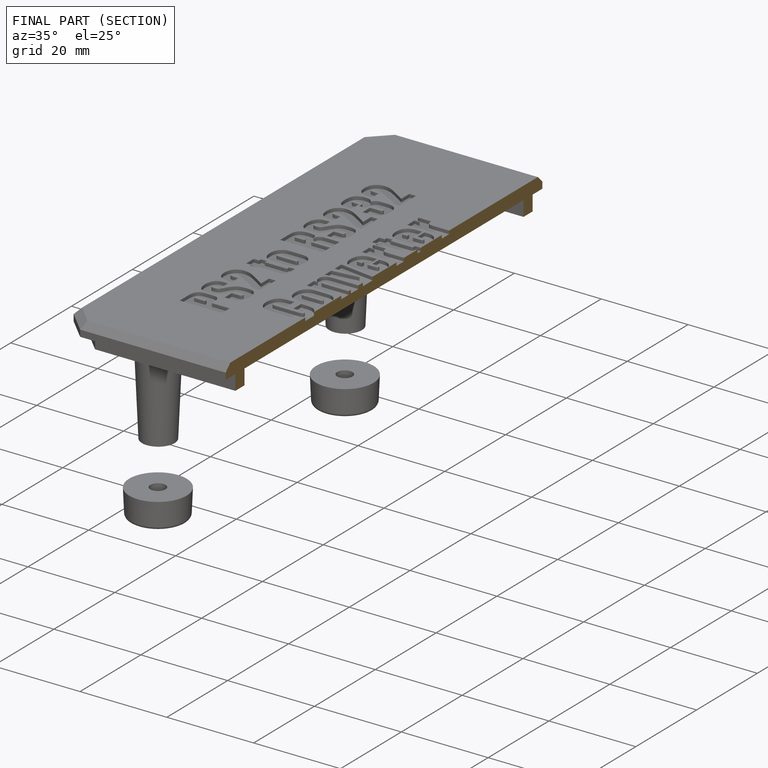
[diagram: finished part — half-section view (interior)]
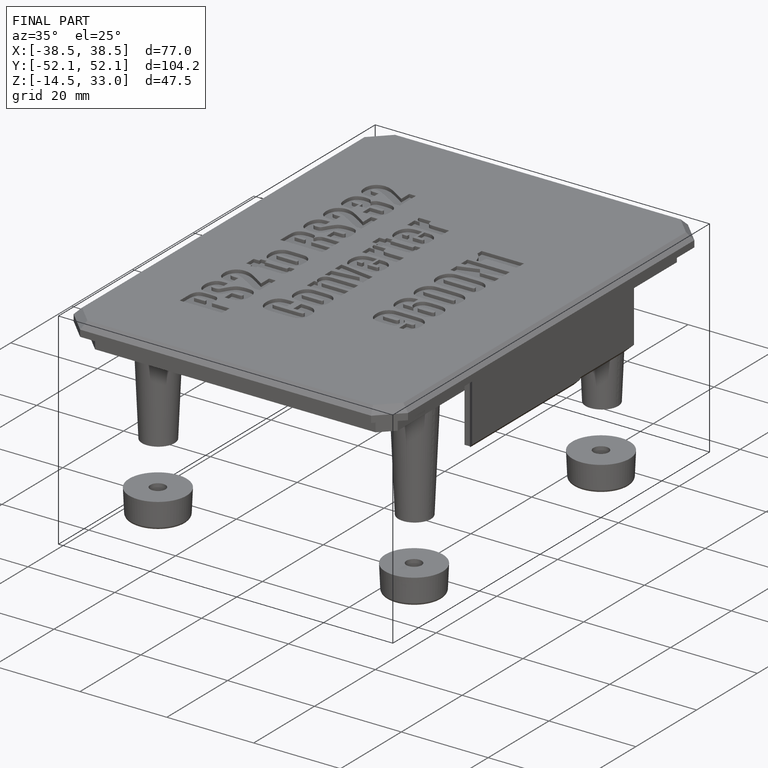
[diagram: finished part — iso view with bounding-box wireframe]
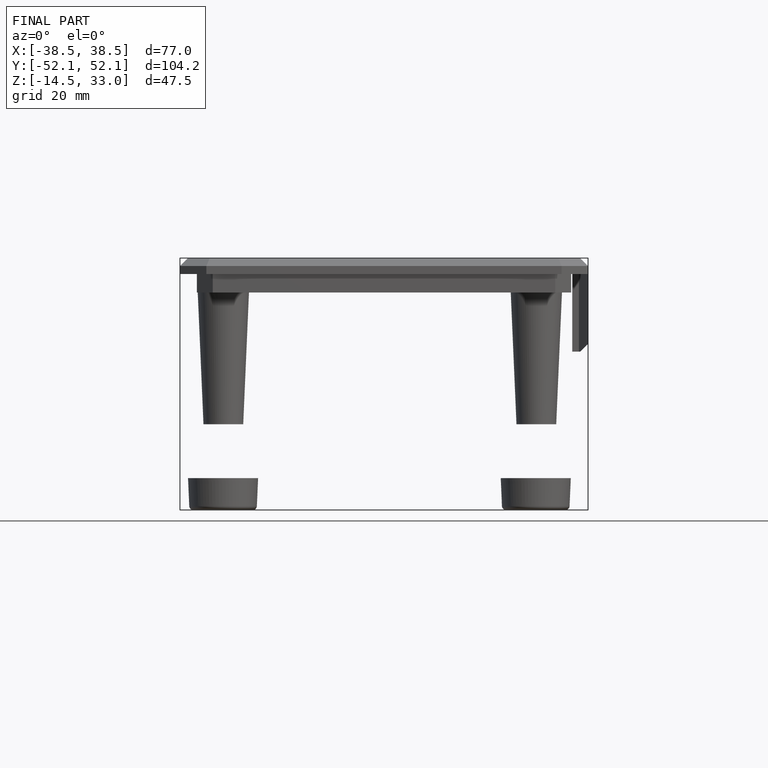
[diagram: finished part — front view with bounding-box wireframe]
